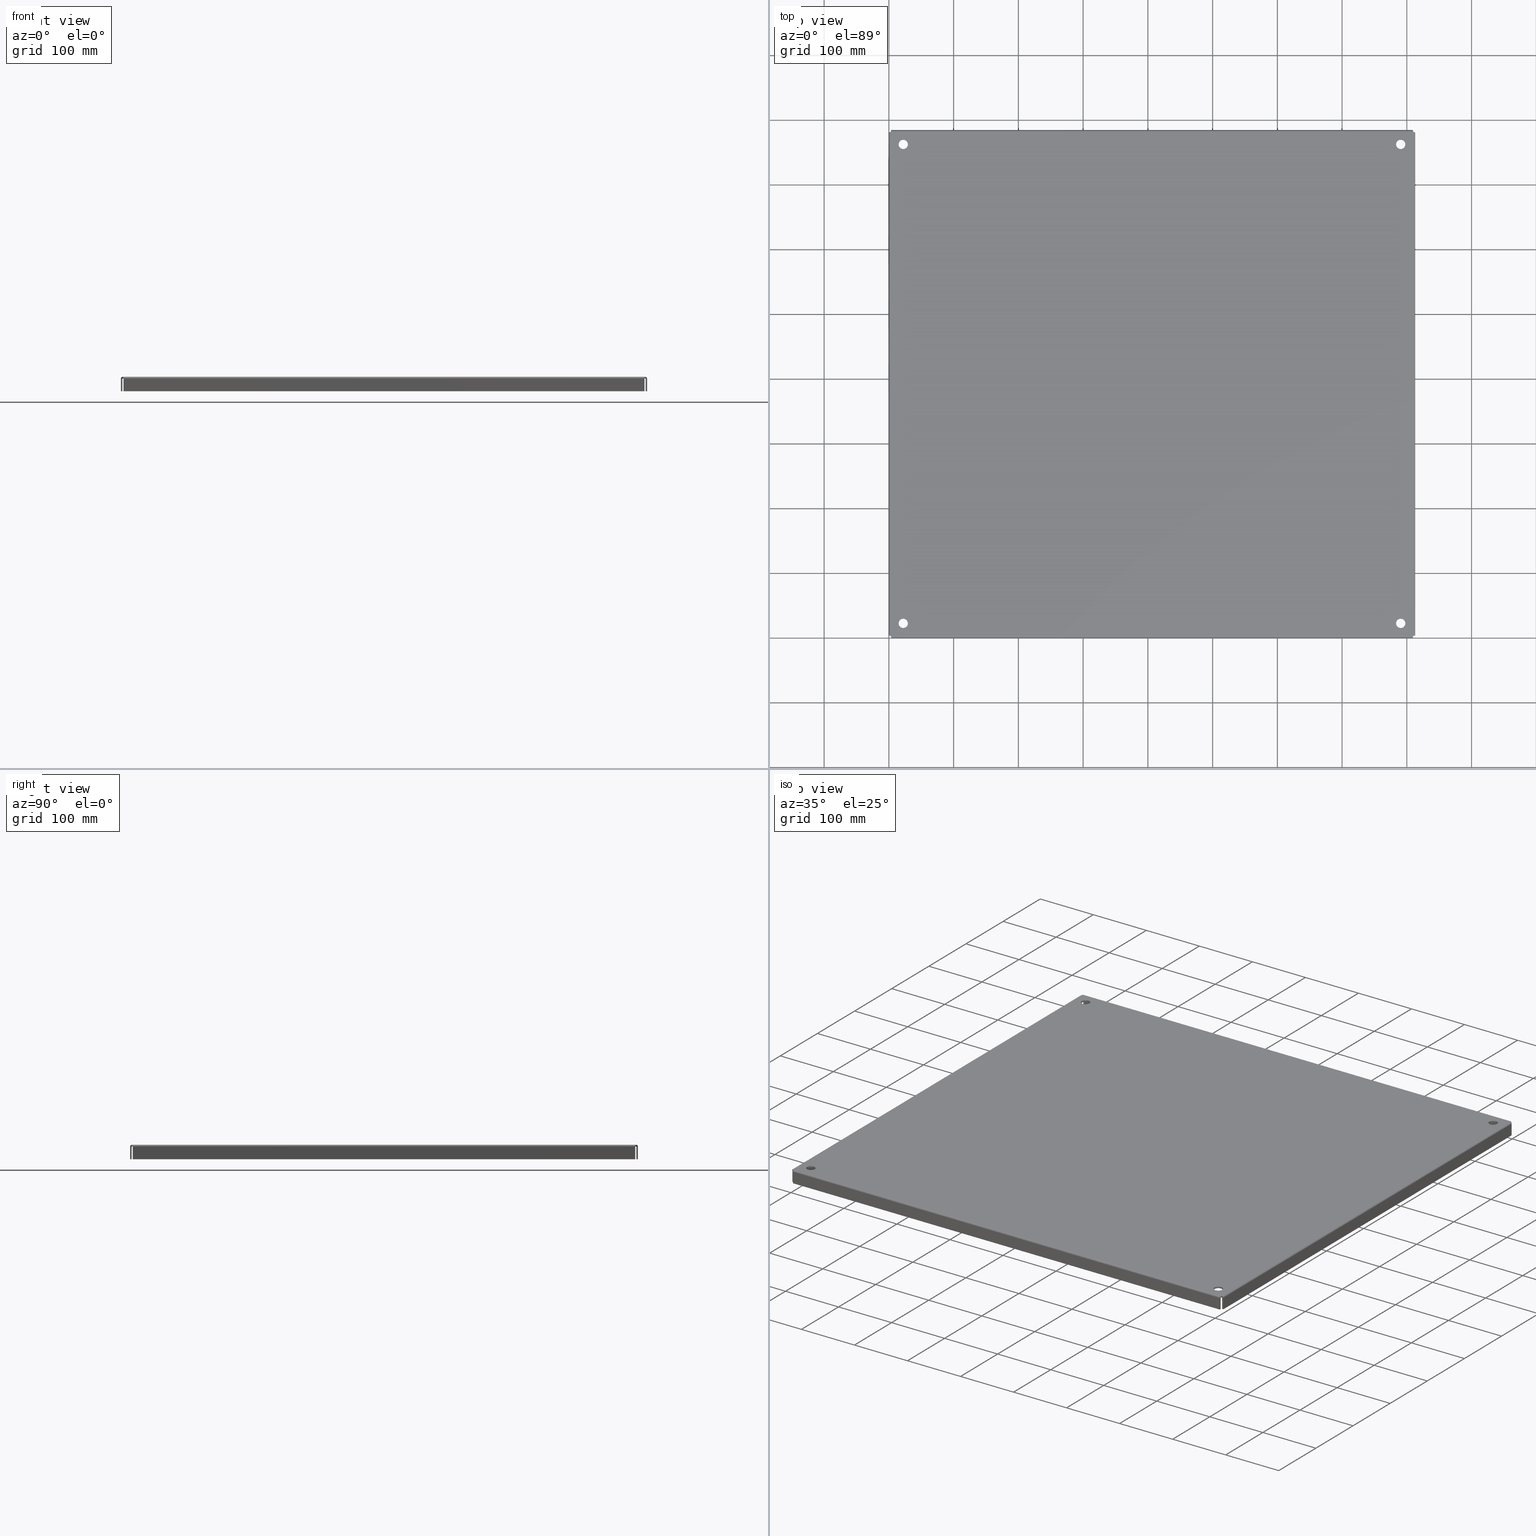
[diagram: canonical four-view strip — front | top / right | iso, engineering-drawing reading convention]
A machine part, canonical four-view strip (front | top / right | iso — engineering-drawing reading convention). The complete STEP part file that produces these views, byte-faithful:
ISO-10303-21;
HEADER;
/****************************************************************
 * Generated by software with PDElib inside                    *
 * PDElib Version v51a, created Wed 07/06/2011                  *
 * ITI Transcendata (http://www.transcendata.com/)              *
 ****************************************************************/
FILE_DESCRIPTION((''),'2;1');
FILE_NAME('C:\\W_Vault\\W-India\\Panels\\WA_F1G & WA_F2G\\WA_P_F_G_DXF STP\\WA72P36F2G.stp','2013-06-19T20:30:04',('ypadmaraja'),(''),'Autodesk Inventor 2012','Autodesk Inventor 2012','');
FILE_SCHEMA(('AUTOMOTIVE_DESIGN { 1 0 10303 214 1 1 1 1 }'));
ENDSEC;
DATA;
#5=APPLICATION_CONTEXT('automotive design');
#6=APPLICATION_PROTOCOL_DEFINITION('International Standard','automotive_design',2001,#5);
#7=PRODUCT_CONTEXT('',#5,'mechanical');
#8=PRODUCT('WA_P_F_G','WA_P_F_G',$,(#7));
#9=PRODUCT_RELATED_PRODUCT_CATEGORY('part',$,(#8));
#10=PRODUCT_DEFINITION_FORMATION('',$,#8);
#11=PRODUCT_DEFINITION_CONTEXT('part definition',#5,'design');
#12=PRODUCT_DEFINITION('',$,#10,#11);
#18=(NAMED_UNIT(*)PLANE_ANGLE_UNIT()SI_UNIT($,.RADIAN.));
#19=DIMENSIONAL_EXPONENTS(0.0,0.0,0.0,0.0,0.0,0.0,0.0);
#20=PLANE_ANGLE_MEASURE_WITH_UNIT(PLANE_ANGLE_MEASURE(0.0174532925),#18);
#24=(CONVERSION_BASED_UNIT('DEGREE',#20)NAMED_UNIT(#19)PLANE_ANGLE_UNIT());
#28=(NAMED_UNIT(*)SI_UNIT($,.STERADIAN.)SOLID_ANGLE_UNIT());
#32=(LENGTH_UNIT()NAMED_UNIT(*)SI_UNIT(.CENTI.,.METRE.));
#33=DIMENSIONAL_EXPONENTS(1.0,0.0,0.0,0.0,0.0,0.0,0.0);
#34=LENGTH_MEASURE_WITH_UNIT(LENGTH_MEASURE(2.54),#32);
#38=(CONVERSION_BASED_UNIT('INCH',#34)LENGTH_UNIT()NAMED_UNIT(#33));
#40=UNCERTAINTY_MEASURE_WITH_UNIT(LENGTH_MEASURE(0.000393700787402),#38,'DISTANCE_ACCURACY_VALUE','');
#42=(GEOMETRIC_REPRESENTATION_CONTEXT(3)GLOBAL_UNCERTAINTY_ASSIGNED_CONTEXT((#40))GLOBAL_UNIT_ASSIGNED_CONTEXT((#24,#28,#38))REPRESENTATION_CONTEXT('None','None'));
#43=AXIS2_PLACEMENT_3D('',#44,#45,#46);
#44=CARTESIAN_POINT('',(0.0,0.0,0.0));
#45=DIRECTION('',(0.0,0.0,1.0));
#46=DIRECTION('',(1.0,0.0,0.0));
#47=SHAPE_REPRESENTATION('',(#43),#42);
#48=PRODUCT_DEFINITION_SHAPE('','',#12);
#49=SHAPE_DEFINITION_REPRESENTATION(#48,#47);
#55=(NAMED_UNIT(*)PLANE_ANGLE_UNIT()SI_UNIT($,.RADIAN.));
#56=DIMENSIONAL_EXPONENTS(0.0,0.0,0.0,0.0,0.0,0.0,0.0);
#57=PLANE_ANGLE_MEASURE_WITH_UNIT(PLANE_ANGLE_MEASURE(0.0174532925),#55);
#61=(CONVERSION_BASED_UNIT('DEGREE',#57)NAMED_UNIT(#56)PLANE_ANGLE_UNIT());
#65=(NAMED_UNIT(*)SI_UNIT($,.STERADIAN.)SOLID_ANGLE_UNIT());
#69=(LENGTH_UNIT()NAMED_UNIT(*)SI_UNIT(.MILLI.,.METRE.));
#71=UNCERTAINTY_MEASURE_WITH_UNIT(LENGTH_MEASURE(0.000001),#69,'DISTANCE_ACCURACY_VALUE','');
#73=(GEOMETRIC_REPRESENTATION_CONTEXT(3)GLOBAL_UNCERTAINTY_ASSIGNED_CONTEXT((#71))GLOBAL_UNIT_ASSIGNED_CONTEXT((#61,#65,#69))REPRESENTATION_CONTEXT('','3D'));
#74=CARTESIAN_POINT('',(31.125000000000004,30.004999999999988,0.046875));
#75=DIRECTION('',(0.0,0.0,1.0));
#76=DIRECTION('',(1.0,0.0,0.0));
#77=AXIS2_PLACEMENT_3D('',#74,#75,#76);
#78=CYLINDRICAL_SURFACE('',#77,0.2815);
#79=CARTESIAN_POINT('',(31.406500000000005,30.004999999999988,0.09375));
#80=VERTEX_POINT('',#79);
#81=CARTESIAN_POINT('',(31.125000000000004,30.004999999999988,0.09375));
#82=DIRECTION('',(0.0,0.0,-1.0));
#83=DIRECTION('',(1.0,0.0,0.0));
#84=AXIS2_PLACEMENT_3D('',#81,#82,#83);
#85=CIRCLE('',#84,0.2815);
#86=EDGE_CURVE('',#80,#80,#85,.T.);
#87=ORIENTED_EDGE('',*,*,#86,.F.);
#88=EDGE_LOOP('',(#87));
#89=FACE_OUTER_BOUND('',#88,.T.);
#90=CARTESIAN_POINT('',(31.406500000000005,30.004999999999988,0.0));
#91=VERTEX_POINT('',#90);
#92=CARTESIAN_POINT('',(31.125000000000004,30.004999999999988,0.0));
#93=DIRECTION('',(0.0,0.0,1.0));
#94=DIRECTION('',(1.0,0.0,0.0));
#95=AXIS2_PLACEMENT_3D('',#92,#93,#94);
#96=CIRCLE('',#95,0.2815);
#97=EDGE_CURVE('',#91,#91,#96,.T.);
#98=ORIENTED_EDGE('',*,*,#97,.F.);
#99=EDGE_LOOP('',(#98));
#100=FACE_BOUND('',#99,.T.);
#101=ADVANCED_FACE('',(#89,#100),#78,.F.);
#102=CARTESIAN_POINT('',(0.874999999999991,30.004999999999988,0.046875));
#103=DIRECTION('',(0.0,0.0,1.0));
#104=DIRECTION('',(1.0,0.0,0.0));
#105=AXIS2_PLACEMENT_3D('',#102,#103,#104);
#106=CYLINDRICAL_SURFACE('',#105,0.2815);
#107=CARTESIAN_POINT('',(1.156499999999991,30.004999999999988,0.09375));
#108=VERTEX_POINT('',#107);
#109=CARTESIAN_POINT('',(0.874999999999991,30.004999999999988,0.09375));
#110=DIRECTION('',(0.0,0.0,-1.0));
#111=DIRECTION('',(1.0,0.0,0.0));
#112=AXIS2_PLACEMENT_3D('',#109,#110,#111);
#113=CIRCLE('',#112,0.2815);
#114=EDGE_CURVE('',#108,#108,#113,.T.);
#115=ORIENTED_EDGE('',*,*,#114,.F.);
#116=EDGE_LOOP('',(#115));
#117=FACE_OUTER_BOUND('',#116,.T.);
#118=CARTESIAN_POINT('',(1.156499999999991,30.004999999999988,0.0));
#119=VERTEX_POINT('',#118);
#120=CARTESIAN_POINT('',(0.874999999999991,30.004999999999988,0.0));
#121=DIRECTION('',(0.0,0.0,1.0));
#122=DIRECTION('',(1.0,0.0,0.0));
#123=AXIS2_PLACEMENT_3D('',#120,#121,#122);
#124=CIRCLE('',#123,0.2815);
#125=EDGE_CURVE('',#119,#119,#124,.T.);
#126=ORIENTED_EDGE('',*,*,#125,.F.);
#127=EDGE_LOOP('',(#126));
#128=FACE_BOUND('',#127,.T.);
#129=ADVANCED_FACE('',(#117,#128),#106,.F.);
#130=CARTESIAN_POINT('',(0.874999999999976,0.875,0.046875));
#131=DIRECTION('',(0.0,0.0,1.0));
#132=DIRECTION('',(1.0,0.0,0.0));
#133=AXIS2_PLACEMENT_3D('',#130,#131,#132);
#134=CYLINDRICAL_SURFACE('',#133,0.2815);
#135=CARTESIAN_POINT('',(1.156499999999976,0.875,0.09375));
#136=VERTEX_POINT('',#135);
#137=CARTESIAN_POINT('',(0.874999999999976,0.875,0.09375));
#138=DIRECTION('',(0.0,0.0,-1.0));
#139=DIRECTION('',(1.0,0.0,0.0));
#140=AXIS2_PLACEMENT_3D('',#137,#138,#139);
#141=CIRCLE('',#140,0.2815);
#142=EDGE_CURVE('',#136,#136,#141,.T.);
#143=ORIENTED_EDGE('',*,*,#142,.F.);
#144=EDGE_LOOP('',(#143));
#145=FACE_OUTER_BOUND('',#144,.T.);
#146=CARTESIAN_POINT('',(1.156499999999976,0.875,0.0));
#147=VERTEX_POINT('',#146);
#148=CARTESIAN_POINT('',(0.874999999999976,0.875,0.0));
#149=DIRECTION('',(0.0,0.0,1.0));
#150=DIRECTION('',(1.0,0.0,0.0));
#151=AXIS2_PLACEMENT_3D('',#148,#149,#150);
#152=CIRCLE('',#151,0.2815);
#153=EDGE_CURVE('',#147,#147,#152,.T.);
#154=ORIENTED_EDGE('',*,*,#153,.F.);
#155=EDGE_LOOP('',(#154));
#156=FACE_BOUND('',#155,.T.);
#157=ADVANCED_FACE('',(#145,#156),#134,.F.);
#158=CARTESIAN_POINT('',(31.124999999999993,0.875,0.046875));
#159=DIRECTION('',(0.0,0.0,1.0));
#160=DIRECTION('',(1.0,0.0,0.0));
#161=AXIS2_PLACEMENT_3D('',#158,#159,#160);
#162=CYLINDRICAL_SURFACE('',#161,0.2815);
#163=CARTESIAN_POINT('',(31.406499999999994,0.875,0.09375));
#164=VERTEX_POINT('',#163);
#165=CARTESIAN_POINT('',(31.124999999999993,0.875,0.09375));
#166=DIRECTION('',(0.0,0.0,-1.0));
#167=DIRECTION('',(1.0,0.0,0.0));
#168=AXIS2_PLACEMENT_3D('',#165,#166,#167);
#169=CIRCLE('',#168,0.2815);
#170=EDGE_CURVE('',#164,#164,#169,.T.);
#171=ORIENTED_EDGE('',*,*,#170,.F.);
#172=EDGE_LOOP('',(#171));
#173=FACE_OUTER_BOUND('',#172,.T.);
#174=CARTESIAN_POINT('',(31.406499999999994,0.875,0.0));
#175=VERTEX_POINT('',#174);
#176=CARTESIAN_POINT('',(31.124999999999993,0.875,0.0));
#177=DIRECTION('',(0.0,0.0,1.0));
#178=DIRECTION('',(1.0,0.0,0.0));
#179=AXIS2_PLACEMENT_3D('',#176,#177,#178);
#180=CIRCLE('',#179,0.2815);
#181=EDGE_CURVE('',#175,#175,#180,.T.);
#182=ORIENTED_EDGE('',*,*,#181,.F.);
#183=EDGE_LOOP('',(#182));
#184=FACE_BOUND('',#183,.T.);
#185=ADVANCED_FACE('',(#173,#184),#162,.F.);
#186=CARTESIAN_POINT('',(31.890650000000008,30.719958739263781,-0.0156));
#187=DIRECTION('',(-1.811796E-016,1.0,0.0));
#188=DIRECTION('',(1.0,0.0,4.032942E-013));
#189=AXIS2_PLACEMENT_3D('',#186,#187,#188);
#190=CYLINDRICAL_SURFACE('',#189,0.109349999999989);
#191=CARTESIAN_POINT('',(32.0,30.719958739263781,-0.015599999999973));
#192=VERTEX_POINT('',#191);
#193=CARTESIAN_POINT('',(32.000000000000021,0.160041260736237,-0.015599999999985));
#194=VERTEX_POINT('',#193);
#195=CARTESIAN_POINT('',(31.999999999999996,30.719958739263781,-0.015599999999985));
#196=DIRECTION('',(0.0,-1.0,0.0));
#197=VECTOR('',#196,30.559917478527545);
#198=LINE('',#195,#197);
#199=EDGE_CURVE('',#192,#194,#198,.T.);
#200=ORIENTED_EDGE('',*,*,#199,.F.);
#201=CARTESIAN_POINT('',(31.890649999999997,30.770650000000018,0.09375));
#202=VERTEX_POINT('',#201);
#203=CARTESIAN_POINT('',(31.890650000000008,30.770650000000028,0.09375));
#204=CARTESIAN_POINT('',(31.915188082619288,30.763408391323424,0.09375));
#205=CARTESIAN_POINT('',(31.939756569712415,30.756166782646815,0.085170621322967));
#206=CARTESIAN_POINT('',(31.958844052693603,30.748925173970211,0.069869628275876));
#207=CARTESIAN_POINT('',(31.984294030001859,30.739269695734738,0.049468304213088));
#208=CARTESIAN_POINT('',(31.999999999999996,30.729614217499261,0.017117443492422));
#209=CARTESIAN_POINT('',(32.000000000000007,30.719958739263781,-0.015599999999954));
#210=B_SPLINE_CURVE_WITH_KNOTS('',3,(#203,#204,#205,#206,#207,#208,#209),.UNSPECIFIED.,.F.,.U.,(4,3,4),(0.0,0.673198425769068,1.570796326794471),.UNSPECIFIED.);
#211=EDGE_CURVE('',#202,#192,#210,.T.);
#212=ORIENTED_EDGE('',*,*,#211,.F.);
#213=CARTESIAN_POINT('',(31.890650000000001,0.10935,0.09375));
#214=VERTEX_POINT('',#213);
#215=CARTESIAN_POINT('',(31.890650000000001,0.10935,0.09375));
#216=DIRECTION('',(0.0,1.0,0.0));
#217=VECTOR('',#216,30.661300000000018);
#218=LINE('',#215,#217);
#219=EDGE_CURVE('',#214,#202,#218,.T.);
#220=ORIENTED_EDGE('',*,*,#219,.F.);
#221=CARTESIAN_POINT('',(32.000000000000021,0.160041260736237,-0.015599999999981));
#222=CARTESIAN_POINT('',(32.000000000000021,0.150385782500762,0.017117443492408));
#223=CARTESIAN_POINT('',(31.98429409483029,0.140730304265287,0.049468381998053));
#224=CARTESIAN_POINT('',(31.958844108260827,0.131074826029811,0.069869694948711));
#225=CARTESIAN_POINT('',(31.939756618333732,0.123833217353206,0.085170679661701));
#226=CARTESIAN_POINT('',(31.915188082619281,0.1165916086766,0.093750000000014));
#227=CARTESIAN_POINT('',(31.890649999999997,0.109349999999995,0.093750000000012));
#228=B_SPLINE_CURVE_WITH_KNOTS('',3,(#221,#222,#223,#224,#225,#226,#227),.UNSPECIFIED.,.F.,.U.,(4,3,4),(0.0,0.89759790102569,1.570796326794839),.UNSPECIFIED.);
#229=EDGE_CURVE('',#194,#214,#228,.T.);
#230=ORIENTED_EDGE('',*,*,#229,.F.);
#231=EDGE_LOOP('',(#200,#212,#220,#230));
#232=FACE_OUTER_BOUND('',#231,.T.);
#233=ADVANCED_FACE('',(#232),#190,.T.);
#234=CARTESIAN_POINT('',(31.906250000000032,15.440000000000003,-0.361740214942218));
#235=DIRECTION('',(1.0,0.0,0.0));
#236=DIRECTION('',(0.0,0.0,-1.0));
#237=AXIS2_PLACEMENT_3D('',#234,#235,#236);
#238=PLANE('',#237);
#239=CARTESIAN_POINT('',(31.906250000000025,0.160041260736237,-0.01559999999999));
#240=VERTEX_POINT('',#239);
#241=CARTESIAN_POINT('',(31.906249999999996,30.719958739263781,-0.015599999999979));
#242=VERTEX_POINT('',#241);
#243=CARTESIAN_POINT('',(31.906250000000021,0.160041260736238,-0.01559999999999));
#244=DIRECTION('',(0.0,1.0,0.0));
#245=VECTOR('',#244,30.559917478527545);
#246=LINE('',#243,#245);
#247=EDGE_CURVE('',#240,#242,#246,.T.);
#248=ORIENTED_EDGE('',*,*,#247,.T.);
#249=CARTESIAN_POINT('',(31.90625000000005,30.719958739263781,-0.781249999999978));
#250=VERTEX_POINT('',#249);
#251=CARTESIAN_POINT('',(31.906250000000004,30.719958739263781,-0.015599999999979));
#252=DIRECTION('',(0.0,0.0,-1.0));
#253=VECTOR('',#252,0.765649999999999);
#254=LINE('',#251,#253);
#255=EDGE_CURVE('',#242,#250,#254,.T.);
#256=ORIENTED_EDGE('',*,*,#255,.T.);
#257=CARTESIAN_POINT('',(31.906250000000071,0.160041260736234,-0.781249999999994));
#258=VERTEX_POINT('',#257);
#259=CARTESIAN_POINT('',(31.90625000000005,30.719958739263781,-0.781249999999978));
#260=DIRECTION('',(0.0,-1.0,0.0));
#261=VECTOR('',#260,30.559917478527549);
#262=LINE('',#259,#261);
#263=EDGE_CURVE('',#250,#258,#262,.T.);
#264=ORIENTED_EDGE('',*,*,#263,.T.);
#265=CARTESIAN_POINT('',(31.906250000000025,0.160041260736234,-0.015599999999996));
#266=DIRECTION('',(0.0,0.0,-1.0));
#267=VECTOR('',#266,0.765649999999999);
#268=LINE('',#265,#267);
#269=EDGE_CURVE('',#240,#258,#268,.T.);
#270=ORIENTED_EDGE('',*,*,#269,.F.);
#271=EDGE_LOOP('',(#248,#256,#264,#270));
#272=FACE_OUTER_BOUND('',#271,.T.);
#273=ADVANCED_FACE('',(#272),#238,.F.);
#274=CARTESIAN_POINT('',(31.906250000000071,0.160041260736234,-0.781249999999994));
#275=DIRECTION('',(0.0,-1.0,0.0));
#276=DIRECTION('',(-1.0,0.0,0.0));
#277=AXIS2_PLACEMENT_3D('',#274,#275,#276);
#278=PLANE('',#277);
#279=CARTESIAN_POINT('',(32.000000000000071,0.160041260736234,-0.781249999999989));
#280=VERTEX_POINT('',#279);
#281=CARTESIAN_POINT('',(32.000000000000071,0.160041260736234,-0.781249999999989));
#282=DIRECTION('',(0.0,0.0,1.0));
#283=VECTOR('',#282,0.765649999999999);
#284=LINE('',#281,#283);
#285=EDGE_CURVE('',#280,#194,#284,.T.);
#286=ORIENTED_EDGE('',*,*,#285,.T.);
#287=CARTESIAN_POINT('',(31.906250000000025,0.160041260736237,-0.01559999999999));
#288=DIRECTION('',(1.0,0.0,0.0));
#289=VECTOR('',#288,0.093749999999996);
#290=LINE('',#287,#289);
#291=EDGE_CURVE('',#240,#194,#290,.T.);
#292=ORIENTED_EDGE('',*,*,#291,.F.);
#293=ORIENTED_EDGE('',*,*,#269,.T.);
#294=CARTESIAN_POINT('',(31.906250000000071,0.160041260736234,-0.781249999999994));
#295=DIRECTION('',(1.0,0.0,0.0));
#296=VECTOR('',#295,0.09375);
#297=LINE('',#294,#296);
#298=EDGE_CURVE('',#258,#280,#297,.T.);
#299=ORIENTED_EDGE('',*,*,#298,.T.);
#300=EDGE_LOOP('',(#286,#292,#293,#299));
#301=FACE_OUTER_BOUND('',#300,.T.);
#302=ADVANCED_FACE('',(#301),#278,.T.);
#303=CARTESIAN_POINT('',(31.890649999999987,0.109349999999992,0.093750000000012));
#304=CARTESIAN_POINT('',(31.89064999999999,0.109349999999992,0.062500000000008));
#305=CARTESIAN_POINT('',(31.890650000000001,0.109349999999992,0.031250000000004));
#306=CARTESIAN_POINT('',(31.890650000000008,0.109349999999992,-8.195544E-018));
#307=CARTESIAN_POINT('',(31.915188082619277,0.116591608676598,0.093750000000017));
#308=CARTESIAN_POINT('',(31.908175599017518,0.116591608676598,0.062500000000012));
#309=CARTESIAN_POINT('',(31.901163115415763,0.116591608676598,0.031250000000006));
#310=CARTESIAN_POINT('',(31.894150631814007,0.116591608676598,7.877560E-016));
#311=CARTESIAN_POINT('',(31.972514665952996,0.13348869558868,0.073731585877286));
#312=CARTESIAN_POINT('',(31.949119413908818,0.13348869558868,0.048202440393379));
#313=CARTESIAN_POINT('',(31.925724161864643,0.13348869558868,0.022673294909472));
#314=CARTESIAN_POINT('',(31.902328909820469,0.13348869558868,-0.002855850574435));
#315=CARTESIAN_POINT('',(32.000000000000021,0.150385782500762,0.017117443492408));
#316=CARTESIAN_POINT('',(31.968750000000014,0.150385782500762,0.007767465356717));
#317=CARTESIAN_POINT('',(31.937500000000014,0.150385782500762,-0.001582512778973));
#318=CARTESIAN_POINT('',(31.906250000000011,0.150385782500762,-0.010932490914664));
#319=CARTESIAN_POINT('',(32.000000000000021,0.160041260736237,-0.015599999999981));
#320=CARTESIAN_POINT('',(31.968750000000018,0.160041260736237,-0.015599999999986));
#321=CARTESIAN_POINT('',(31.937500000000014,0.160041260736237,-0.015599999999992));
#322=CARTESIAN_POINT('',(31.906250000000011,0.160041260736237,-0.015599999999997));
#323=B_SPLINE_SURFACE_WITH_KNOTS('',3,3,((#303,#307,#311,#315,#319),(#304,#308,#312,#316,#320),(#305,#309,#313,#317,#321),(#306,#310,#314,#318,#322)),.UNSPECIFIED.,.F.,.F.,.F.,(4,4),(4,1,4),(-0.238125,2.964569E-014),(-0.222887265970854,-0.127364151983345,0.0),.UNSPECIFIED.);
#324=ORIENTED_EDGE('',*,*,#229,.T.);
#325=CARTESIAN_POINT('',(31.890650000000001,0.109349999999992,0.01667105887093));
#326=VERTEX_POINT('',#325);
#327=CARTESIAN_POINT('',(31.890650000000001,0.10935,0.01667105887093));
#328=DIRECTION('',(0.0,0.0,1.0));
#329=VECTOR('',#328,0.07707894112907);
#330=LINE('',#327,#329);
#331=EDGE_CURVE('',#326,#214,#330,.T.);
#332=ORIENTED_EDGE('',*,*,#331,.F.);
#333=CARTESIAN_POINT('',(31.890650000000001,0.10935,0.0));
#334=VERTEX_POINT('',#333);
#335=CARTESIAN_POINT('',(31.890650000000001,0.10935,0.0));
#336=DIRECTION('',(0.0,0.0,1.0));
#337=VECTOR('',#336,0.01667105887093);
#338=LINE('',#335,#337);
#339=EDGE_CURVE('',#334,#326,#338,.T.);
#340=ORIENTED_EDGE('',*,*,#339,.F.);
#341=CARTESIAN_POINT('',(31.890650000000008,0.109349999999994,0.0));
#342=CARTESIAN_POINT('',(31.894150631814007,0.1165916086766,5.423561E-016));
#343=CARTESIAN_POINT('',(31.897655608102493,0.123833217353205,-0.001223935960472));
#344=CARTESIAN_POINT('',(31.900378651932972,0.131074826029811,-0.003406792490172));
#345=CARTESIAN_POINT('',(31.904009377040271,0.140730304265287,-0.006317267863105));
#346=CARTESIAN_POINT('',(31.906250000000011,0.150385782500762,-0.010932490914664));
#347=CARTESIAN_POINT('',(31.906250000000011,0.160041260736237,-0.015599999999997));
#348=B_SPLINE_CURVE_WITH_KNOTS('',3,(#341,#342,#343,#344,#345,#346,#347),.UNSPECIFIED.,.F.,.U.,(4,3,4),(0.0,0.673198425769177,1.570796326794839),.UNSPECIFIED.);
#349=EDGE_CURVE('',#334,#240,#348,.T.);
#350=ORIENTED_EDGE('',*,*,#349,.T.);
#351=ORIENTED_EDGE('',*,*,#291,.T.);
#352=EDGE_LOOP('',(#324,#332,#340,#350,#351));
#353=FACE_OUTER_BOUND('',#352,.T.);
#354=ADVANCED_FACE('',(#353),#323,.T.);
#355=CARTESIAN_POINT('',(32.000000000000007,30.719958739263781,-0.015599999999956));
#356=CARTESIAN_POINT('',(31.968750000000004,30.719958739263781,-0.015599999999969));
#357=CARTESIAN_POINT('',(31.937500000000004,30.719958739263781,-0.015599999999981));
#358=CARTESIAN_POINT('',(31.906249999999996,30.719958739263781,-0.015599999999994));
#359=CARTESIAN_POINT('',(31.999999999999996,30.729614217499261,0.01711744349242));
#360=CARTESIAN_POINT('',(31.968749999999993,30.729614217499261,0.007767465356725));
#361=CARTESIAN_POINT('',(31.937499999999996,30.729614217499261,-0.00158251277897));
#362=CARTESIAN_POINT('',(31.906249999999996,30.729614217499261,-0.010932490914664));
#363=CARTESIAN_POINT('',(31.972514552503252,30.746511304411349,0.073731449753589));
#364=CARTESIAN_POINT('',(31.949119332880699,30.746511304411349,0.048202343171057));
#365=CARTESIAN_POINT('',(31.925724113258148,30.746511304411349,0.022673236588524));
#366=CARTESIAN_POINT('',(31.902328893635591,30.746511304411349,-0.002855869994008));
#367=CARTESIAN_POINT('',(31.915188082619288,30.763408391323424,0.09375));
#368=CARTESIAN_POINT('',(31.908175599017525,30.763408391323424,0.062499999999997));
#369=CARTESIAN_POINT('',(31.90116311541577,30.763408391323424,0.031249999999994));
#370=CARTESIAN_POINT('',(31.894150631814007,30.763408391323424,-8.722791E-015));
#371=CARTESIAN_POINT('',(31.890650000000008,30.770650000000028,0.09375));
#372=CARTESIAN_POINT('',(31.890650000000008,30.770650000000028,0.062499999999997));
#373=CARTESIAN_POINT('',(31.890650000000008,30.770650000000028,0.031249999999994));
#374=CARTESIAN_POINT('',(31.890650000000008,30.770650000000028,-8.722791E-015));
#375=B_SPLINE_SURFACE_WITH_KNOTS('',3,3,((#355,#359,#363,#367,#371),(#356,#360,#364,#368,#372),(#357,#361,#365,#369,#373),(#358,#362,#366,#370,#374)),.UNSPECIFIED.,.F.,.F.,.F.,(4,4),(4,1,4),(-0.238125,2.216009E-014),(-0.222887265970812,-0.095523113987491,0.0),.UNSPECIFIED.);
#376=ORIENTED_EDGE('',*,*,#211,.T.);
#377=CARTESIAN_POINT('',(31.906249999999996,30.719958739263781,-0.015599999999979));
#378=DIRECTION('',(1.0,0.0,0.0));
#379=VECTOR('',#378,0.093750000000004);
#380=LINE('',#377,#379);
#381=EDGE_CURVE('',#242,#192,#380,.T.);
#382=ORIENTED_EDGE('',*,*,#381,.F.);
#383=CARTESIAN_POINT('',(31.890649999999997,30.770650000000018,0.0));
#384=VERTEX_POINT('',#383);
#385=CARTESIAN_POINT('',(31.890650000000008,30.770650000000028,0.0));
#386=CARTESIAN_POINT('',(31.894150631814007,30.763408391323424,2.637490E-016));
#387=CARTESIAN_POINT('',(31.897655601166122,30.756166782646815,-0.001223944283143));
#388=CARTESIAN_POINT('',(31.900378644005684,30.748925173970211,-0.003406802001795));
#389=CARTESIAN_POINT('',(31.904009367791776,30.739269695734738,-0.006317278959997));
#390=CARTESIAN_POINT('',(31.906250000000011,30.729614217499261,-0.010932490914661));
#391=CARTESIAN_POINT('',(31.906250000000011,30.719958739263781,-0.015599999999994));
#392=B_SPLINE_CURVE_WITH_KNOTS('',3,(#385,#386,#387,#388,#389,#390,#391),.UNSPECIFIED.,.F.,.U.,(4,3,4),(0.0,0.673198425769047,1.570796326794471),.UNSPECIFIED.);
#393=EDGE_CURVE('',#384,#242,#392,.T.);
#394=ORIENTED_EDGE('',*,*,#393,.F.);
#395=CARTESIAN_POINT('',(31.890650000000008,30.770650000000028,0.016671058870927));
#396=VERTEX_POINT('',#395);
#397=CARTESIAN_POINT('',(31.890649999999997,30.770650000000018,0.0));
#398=DIRECTION('',(0.0,0.0,1.0));
#399=VECTOR('',#398,0.016671058870927);
#400=LINE('',#397,#399);
#401=EDGE_CURVE('',#384,#396,#400,.T.);
#402=ORIENTED_EDGE('',*,*,#401,.T.);
#403=CARTESIAN_POINT('',(31.890649999999997,30.770650000000018,0.016671058870927));
#404=DIRECTION('',(0.0,0.0,1.0));
#405=VECTOR('',#404,0.077078941129073);
#406=LINE('',#403,#405);
#407=EDGE_CURVE('',#396,#202,#406,.T.);
#408=ORIENTED_EDGE('',*,*,#407,.T.);
#409=EDGE_LOOP('',(#376,#382,#394,#402,#408));
#410=FACE_OUTER_BOUND('',#409,.T.);
#411=ADVANCED_FACE('',(#410),#375,.T.);
#412=CARTESIAN_POINT('',(31.906249999999996,30.719958739263781,-0.015599999999979));
#413=DIRECTION('',(0.0,1.0,0.0));
#414=DIRECTION('',(1.0,0.0,0.0));
#415=AXIS2_PLACEMENT_3D('',#412,#413,#414);
#416=PLANE('',#415);
#417=CARTESIAN_POINT('',(32.00000000000005,30.719958739263781,-0.781249999999972));
#418=VERTEX_POINT('',#417);
#419=CARTESIAN_POINT('',(32.0,30.719958739263781,-0.015599999999973));
#420=DIRECTION('',(0.0,0.0,-1.0));
#421=VECTOR('',#420,0.765649999999999);
#422=LINE('',#419,#421);
#423=EDGE_CURVE('',#192,#418,#422,.T.);
#424=ORIENTED_EDGE('',*,*,#423,.T.);
#425=CARTESIAN_POINT('',(31.90625000000005,30.719958739263781,-0.781249999999978));
#426=DIRECTION('',(1.0,0.0,0.0));
#427=VECTOR('',#426,0.093750000000007);
#428=LINE('',#425,#427);
#429=EDGE_CURVE('',#250,#418,#428,.T.);
#430=ORIENTED_EDGE('',*,*,#429,.F.);
#431=ORIENTED_EDGE('',*,*,#255,.F.);
#432=ORIENTED_EDGE('',*,*,#381,.T.);
#433=EDGE_LOOP('',(#424,#430,#431,#432));
#434=FACE_OUTER_BOUND('',#433,.T.);
#435=ADVANCED_FACE('',(#434),#416,.T.);
#436=CARTESIAN_POINT('',(31.90625000000005,30.719958739263781,-0.781249999999978));
#437=DIRECTION('',(0.0,0.0,-1.0));
#438=DIRECTION('',(-1.0,0.0,0.0));
#439=AXIS2_PLACEMENT_3D('',#436,#437,#438);
#440=PLANE('',#439);
#441=CARTESIAN_POINT('',(32.00000000000005,30.719958739263781,-0.781249999999972));
#442=DIRECTION('',(0.0,-1.0,0.0));
#443=VECTOR('',#442,30.559917478527549);
#444=LINE('',#441,#443);
#445=EDGE_CURVE('',#418,#280,#444,.T.);
#446=ORIENTED_EDGE('',*,*,#445,.T.);
#447=ORIENTED_EDGE('',*,*,#298,.F.);
#448=ORIENTED_EDGE('',*,*,#263,.F.);
#449=ORIENTED_EDGE('',*,*,#429,.T.);
#450=EDGE_LOOP('',(#446,#447,#448,#449));
#451=FACE_OUTER_BOUND('',#450,.T.);
#452=ADVANCED_FACE('',(#451),#440,.T.);
#453=CARTESIAN_POINT('',(32.000000000000028,15.440000000000005,-0.361740214942212));
#454=DIRECTION('',(1.0,0.0,0.0));
#455=DIRECTION('',(0.0,0.0,-1.0));
#456=AXIS2_PLACEMENT_3D('',#453,#454,#455);
#457=PLANE('',#456);
#458=ORIENTED_EDGE('',*,*,#199,.T.);
#459=ORIENTED_EDGE('',*,*,#285,.F.);
#460=ORIENTED_EDGE('',*,*,#445,.F.);
#461=ORIENTED_EDGE('',*,*,#423,.F.);
#462=EDGE_LOOP('',(#458,#459,#460,#461));
#463=FACE_OUTER_BOUND('',#462,.T.);
#464=ADVANCED_FACE('',(#463),#457,.T.);
#465=CARTESIAN_POINT('',(31.890650000000008,0.160041260736237,-0.0156));
#466=DIRECTION('',(-1.811796E-016,1.0,0.0));
#467=DIRECTION('',(1.0,0.0,1.759941E-013));
#468=AXIS2_PLACEMENT_3D('',#465,#466,#467);
#469=CYLINDRICAL_SURFACE('',#468,0.015600000000007);
#470=ORIENTED_EDGE('',*,*,#247,.F.);
#471=ORIENTED_EDGE('',*,*,#349,.F.);
#472=CARTESIAN_POINT('',(31.890650000000001,30.770650000000018,0.0));
#473=DIRECTION('',(0.0,-1.0,0.0));
#474=VECTOR('',#473,30.661300000000018);
#475=LINE('',#472,#474);
#476=EDGE_CURVE('',#384,#334,#475,.T.);
#477=ORIENTED_EDGE('',*,*,#476,.F.);
#478=ORIENTED_EDGE('',*,*,#393,.T.);
#479=EDGE_LOOP('',(#470,#471,#477,#478));
#480=FACE_OUTER_BOUND('',#479,.T.);
#481=ADVANCED_FACE('',(#480),#469,.F.);
#482=CARTESIAN_POINT('',(0.160041260736223,30.770649999999993,-0.0156));
#483=DIRECTION('',(-1.0,-5.245148E-016,0.0));
#484=DIRECTION('',(0.0,1.0,0.0));
#485=AXIS2_PLACEMENT_3D('',#482,#483,#484);
#486=CYLINDRICAL_SURFACE('',#485,0.109349999999989);
#487=CARTESIAN_POINT('',(0.160041260736222,30.879999999999988,-0.015599999999985));
#488=VERTEX_POINT('',#487);
#489=CARTESIAN_POINT('',(31.839958739263768,30.880000000000017,-0.01559999999999));
#490=VERTEX_POINT('',#489);
#491=CARTESIAN_POINT('',(0.160041260736223,30.879999999999992,-0.015599999999979));
#492=DIRECTION('',(1.0,0.0,0.0));
#493=VECTOR('',#492,31.679917478527543);
#494=LINE('',#491,#493);
#495=EDGE_CURVE('',#488,#490,#494,.T.);
#496=ORIENTED_EDGE('',*,*,#495,.F.);
#497=CARTESIAN_POINT('',(0.109349999999991,30.77065,0.09375));
#498=VERTEX_POINT('',#497);
#499=CARTESIAN_POINT('',(0.109349999999994,30.770649999999993,0.09375));
#500=CARTESIAN_POINT('',(0.116591608676598,30.795188082619283,0.09375));
#501=CARTESIAN_POINT('',(0.123833217353203,30.819756621926611,0.085170683972628));
#502=CARTESIAN_POINT('',(0.131074826029807,30.838844112366974,0.069869699875482));
#503=CARTESIAN_POINT('',(0.140730304265278,30.864294099620782,0.049468387745955));
#504=CARTESIAN_POINT('',(0.15038578250075,30.879999999999995,0.017117443492385));
#505=CARTESIAN_POINT('',(0.160041260736222,30.879999999999995,-0.015600000000001));
#506=B_SPLINE_CURVE_WITH_KNOTS('',3,(#499,#500,#501,#502,#503,#504,#505),.UNSPECIFIED.,.F.,.U.,(4,3,4),(0.0,0.673198425769289,1.570796326794961),.UNSPECIFIED.);
#507=EDGE_CURVE('',#498,#488,#506,.T.);
#508=ORIENTED_EDGE('',*,*,#507,.F.);
#509=CARTESIAN_POINT('',(31.890649999999997,30.770650000000021,0.09375));
#510=DIRECTION('',(-1.0,0.0,0.0));
#511=VECTOR('',#510,31.781300000000005);
#512=LINE('',#509,#511);
#513=EDGE_CURVE('',#202,#498,#512,.T.);
#514=ORIENTED_EDGE('',*,*,#513,.F.);
#515=CARTESIAN_POINT('',(31.839958739263768,30.88000000000002,-0.01560000000003));
#516=CARTESIAN_POINT('',(31.849614217499241,30.880000000000035,0.017117443492364));
#517=CARTESIAN_POINT('',(31.859269695734707,30.864294030001897,0.04946830421306));
#518=CARTESIAN_POINT('',(31.86892517397018,30.838844052693634,0.069869628275866));
#519=CARTESIAN_POINT('',(31.876166782646781,30.819756569712442,0.08517062132297));
#520=CARTESIAN_POINT('',(31.883408391323385,30.795188082619301,0.093750000000011));
#521=CARTESIAN_POINT('',(31.890649999999987,30.770650000000007,0.093750000000011));
#522=B_SPLINE_CURVE_WITH_KNOTS('',3,(#515,#516,#517,#518,#519,#520,#521),.UNSPECIFIED.,.F.,.U.,(4,3,4),(0.0,0.897597901025833,1.570796326795208),.UNSPECIFIED.);
#523=EDGE_CURVE('',#490,#202,#522,.T.);
#524=ORIENTED_EDGE('',*,*,#523,.F.);
#525=EDGE_LOOP('',(#496,#508,#514,#524));
#526=FACE_OUTER_BOUND('',#525,.T.);
#527=ADVANCED_FACE('',(#526),#486,.T.);
#528=CARTESIAN_POINT('',(15.999999999999993,30.786250000000063,-0.361770140794659));
#529=DIRECTION('',(-9.192950E-016,1.0,1.719974E-013));
#530=DIRECTION('',(1.0,0.0,0.0));
#531=AXIS2_PLACEMENT_3D('',#528,#529,#530);
#532=PLANE('',#531);
#533=CARTESIAN_POINT('',(31.839958739263768,30.786250000000024,-0.015600000000007));
#534=VERTEX_POINT('',#533);
#535=CARTESIAN_POINT('',(0.160041260736222,30.786249999999985,-0.015600000000001));
#536=VERTEX_POINT('',#535);
#537=CARTESIAN_POINT('',(31.839958739263768,30.786250000000017,-0.015599999999996));
#538=DIRECTION('',(-1.0,0.0,0.0));
#539=VECTOR('',#538,31.679917478527543);
#540=LINE('',#537,#539);
#541=EDGE_CURVE('',#534,#536,#540,.T.);
#542=ORIENTED_EDGE('',*,*,#541,.T.);
#543=CARTESIAN_POINT('',(0.160041260736228,30.78625000000012,-0.78125));
#544=VERTEX_POINT('',#543);
#545=CARTESIAN_POINT('',(0.160041260736228,30.786249999999985,-0.015600000000001));
#546=DIRECTION('',(0.0,1.763248E-013,-1.0));
#547=VECTOR('',#546,0.765649999999999);
#548=LINE('',#545,#547);
#549=EDGE_CURVE('',#536,#544,#548,.T.);
#550=ORIENTED_EDGE('',*,*,#549,.T.);
#551=CARTESIAN_POINT('',(31.839958739263757,30.786250000000152,-0.781250000000011));
#552=VERTEX_POINT('',#551);
#553=CARTESIAN_POINT('',(0.160041260736228,30.78625000000012,-0.78125));
#554=DIRECTION('',(1.0,0.0,0.0));
#555=VECTOR('',#554,31.679917478527528);
#556=LINE('',#553,#555);
#557=EDGE_CURVE('',#544,#552,#556,.T.);
#558=ORIENTED_EDGE('',*,*,#557,.T.);
#559=CARTESIAN_POINT('',(31.839958739263757,30.786250000000017,-0.015600000000013));
#560=DIRECTION('',(0.0,1.763248E-013,-1.0));
#561=VECTOR('',#560,0.765649999999999);
#562=LINE('',#559,#561);
#563=EDGE_CURVE('',#534,#552,#562,.T.);
#564=ORIENTED_EDGE('',*,*,#563,.F.);
#565=EDGE_LOOP('',(#542,#550,#558,#564));
#566=FACE_OUTER_BOUND('',#565,.T.);
#567=ADVANCED_FACE('',(#566),#532,.F.);
#568=CARTESIAN_POINT('',(31.839958739263757,30.786250000000152,-0.781250000000011));
#569=DIRECTION('',(1.0,0.0,0.0));
#570=DIRECTION('',(0.0,-1.0,-1.759206E-013));
#571=AXIS2_PLACEMENT_3D('',#568,#569,#570);
#572=PLANE('',#571);
#573=CARTESIAN_POINT('',(31.839958739263757,30.880000000000152,-0.781249999999994));
#574=VERTEX_POINT('',#573);
#575=CARTESIAN_POINT('',(31.839958739263757,30.880000000000152,-0.781249999999994));
#576=DIRECTION('',(0.0,-1.763248E-013,1.0));
#577=VECTOR('',#576,0.765649999999999);
#578=LINE('',#575,#577);
#579=EDGE_CURVE('',#574,#490,#578,.T.);
#580=ORIENTED_EDGE('',*,*,#579,.T.);
#581=CARTESIAN_POINT('',(31.839958739263768,30.786250000000024,-0.015600000000007));
#582=DIRECTION('',(0.0,1.0,1.759148E-013));
#583=VECTOR('',#582,0.093749999999993);
#584=LINE('',#581,#583);
#585=EDGE_CURVE('',#534,#490,#584,.T.);
#586=ORIENTED_EDGE('',*,*,#585,.F.);
#587=ORIENTED_EDGE('',*,*,#563,.T.);
#588=CARTESIAN_POINT('',(31.839958739263757,30.786250000000152,-0.781250000000011));
#589=DIRECTION('',(0.0,1.0,1.764514E-013));
#590=VECTOR('',#589,0.09375);
#591=LINE('',#588,#590);
#592=EDGE_CURVE('',#552,#574,#591,.T.);
#593=ORIENTED_EDGE('',*,*,#592,.T.);
#594=EDGE_LOOP('',(#580,#586,#587,#593));
#595=FACE_OUTER_BOUND('',#594,.T.);
#596=ADVANCED_FACE('',(#595),#572,.T.);
#597=CARTESIAN_POINT('',(31.890649999999987,30.770650000000007,0.093750000000011));
#598=CARTESIAN_POINT('',(31.890649999999987,30.770650000000007,0.062500000000008));
#599=CARTESIAN_POINT('',(31.890649999999987,30.770650000000007,0.031250000000004));
#600=CARTESIAN_POINT('',(31.890649999999987,30.770650000000007,-8.195544E-018));
#601=CARTESIAN_POINT('',(31.883408391323385,30.795188082619301,0.093750000000011));
#602=CARTESIAN_POINT('',(31.883408391323385,30.788175599017535,0.062500000000008));
#603=CARTESIAN_POINT('',(31.883408391323385,30.781163115415772,0.031250000000004));
#604=CARTESIAN_POINT('',(31.883408391323385,30.774150631814006,-8.195544E-018));
#605=CARTESIAN_POINT('',(31.866511304411308,30.852514552503287,0.073731449753582));
#606=CARTESIAN_POINT('',(31.866511304411308,30.829119332880726,0.048202343171054));
#607=CARTESIAN_POINT('',(31.866511304411308,30.805724113258151,0.022673236588525));
#608=CARTESIAN_POINT('',(31.866511304411308,30.782328893635594,-0.002855869994003));
#609=CARTESIAN_POINT('',(31.849614217499241,30.880000000000035,0.017117443492364));
#610=CARTESIAN_POINT('',(31.849614217499241,30.848750000000024,0.007767465356686));
#611=CARTESIAN_POINT('',(31.849614217499241,30.817500000000017,-0.001582512778992));
#612=CARTESIAN_POINT('',(31.849614217499241,30.786250000000006,-0.01093249091467));
#613=CARTESIAN_POINT('',(31.839958739263768,30.88000000000002,-0.01560000000003));
#614=CARTESIAN_POINT('',(31.839958739263768,30.848750000000017,-0.015600000000022));
#615=CARTESIAN_POINT('',(31.839958739263768,30.817500000000013,-0.015600000000013));
#616=CARTESIAN_POINT('',(31.839958739263768,30.786250000000006,-0.015600000000004));
#617=B_SPLINE_SURFACE_WITH_KNOTS('',3,3,((#597,#601,#605,#609,#613),(#598,#602,#606,#610,#614),(#599,#603,#607,#611,#615),(#600,#604,#608,#612,#616)),.UNSPECIFIED.,.F.,.F.,.F.,(4,4),(4,1,4),(-0.238125,2.874364E-014),(-0.22288726597084,-0.127364151983337,0.0),.UNSPECIFIED.);
#618=ORIENTED_EDGE('',*,*,#523,.T.);
#619=ORIENTED_EDGE('',*,*,#407,.F.);
#620=ORIENTED_EDGE('',*,*,#401,.F.);
#621=CARTESIAN_POINT('',(31.890649999999987,30.770650000000007,-1.092739E-017));
#622=CARTESIAN_POINT('',(31.883408391323385,30.774150631814006,-1.092739E-017));
#623=CARTESIAN_POINT('',(31.876166782646781,30.777655601166114,-0.001223944283144));
#624=CARTESIAN_POINT('',(31.86892517397018,30.780378644005683,-0.003406802001798));
#625=CARTESIAN_POINT('',(31.859269695734707,30.784009367791771,-0.006317278960003));
#626=CARTESIAN_POINT('',(31.849614217499241,30.786250000000006,-0.01093249091467));
#627=CARTESIAN_POINT('',(31.839958739263768,30.786250000000006,-0.015600000000004));
#628=B_SPLINE_CURVE_WITH_KNOTS('',3,(#621,#622,#623,#624,#625,#626,#627),.UNSPECIFIED.,.F.,.U.,(4,3,4),(0.0,0.673198425769375,1.570796326795208),.UNSPECIFIED.);
#629=EDGE_CURVE('',#384,#534,#628,.T.);
#630=ORIENTED_EDGE('',*,*,#629,.T.);
#631=ORIENTED_EDGE('',*,*,#585,.T.);
#632=EDGE_LOOP('',(#618,#619,#620,#630,#631));
#633=FACE_OUTER_BOUND('',#632,.T.);
#634=ADVANCED_FACE('',(#633),#617,.T.);
#635=CARTESIAN_POINT('',(0.109349999999994,30.770649999999993,-8.853919E-015));
#636=CARTESIAN_POINT('',(0.109349999999994,30.770649999999993,0.031249999999994));
#637=CARTESIAN_POINT('',(0.109349999999994,30.770649999999993,0.062499999999997));
#638=CARTESIAN_POINT('',(0.109349999999994,30.770649999999993,0.09375));
#639=CARTESIAN_POINT('',(0.116591608676598,30.774150631813992,-8.853919E-015));
#640=CARTESIAN_POINT('',(0.116591608676598,30.781163115415755,0.031249999999994));
#641=CARTESIAN_POINT('',(0.116591608676598,30.788175599017524,0.062499999999997));
#642=CARTESIAN_POINT('',(0.116591608676598,30.795188082619283,0.09375));
#643=CARTESIAN_POINT('',(0.133488695588675,30.782328911016421,-0.002855849139434));
#644=CARTESIAN_POINT('',(0.133488695588675,30.805724165456404,0.022673299219088));
#645=CARTESIAN_POINT('',(0.133488695588675,30.829119419896397,0.04820244757761));
#646=CARTESIAN_POINT('',(0.133488695588675,30.85251467433638,0.073731595936132));
#647=CARTESIAN_POINT('',(0.150385782500751,30.786249999999985,-0.01093249091467));
#648=CARTESIAN_POINT('',(0.150385782500751,30.817499999999988,-0.001582512778986));
#649=CARTESIAN_POINT('',(0.150385782500751,30.848749999999988,0.007767465356698));
#650=CARTESIAN_POINT('',(0.150385782500751,30.879999999999995,0.017117443492382));
#651=CARTESIAN_POINT('',(0.160041260736223,30.786249999999985,-0.015600000000001));
#652=CARTESIAN_POINT('',(0.160041260736223,30.817499999999988,-0.015600000000002));
#653=CARTESIAN_POINT('',(0.160041260736223,30.848749999999988,-0.015600000000004));
#654=CARTESIAN_POINT('',(0.160041260736223,30.879999999999995,-0.015600000000006));
#655=B_SPLINE_SURFACE_WITH_KNOTS('',3,3,((#635,#639,#643,#647,#651),(#636,#640,#644,#648,#652),(#637,#641,#645,#649,#653),(#638,#642,#646,#650,#654)),.UNSPECIFIED.,.F.,.F.,.F.,(4,4),(4,1,4),(-2.249316E-014,0.238125),(0.0,0.095523113987503,0.22288726597084),.UNSPECIFIED.);
#656=ORIENTED_EDGE('',*,*,#507,.T.);
#657=CARTESIAN_POINT('',(0.160041260736222,30.786249999999985,-0.015600000000001));
#658=DIRECTION('',(-5.921189E-016,1.0,1.759148E-013));
#659=VECTOR('',#658,0.093750000000004);
#660=LINE('',#657,#659);
#661=EDGE_CURVE('',#536,#488,#660,.T.);
#662=ORIENTED_EDGE('',*,*,#661,.F.);
#663=CARTESIAN_POINT('',(0.109349999999991,30.77065,0.0));
#664=VERTEX_POINT('',#663);
#665=CARTESIAN_POINT('',(0.109349999999994,30.770649999999993,1.397201E-018));
#666=CARTESIAN_POINT('',(0.116591608676598,30.774150631813992,3.348733E-016));
#667=CARTESIAN_POINT('',(0.123833217353203,30.777655608615046,-0.001223935345468));
#668=CARTESIAN_POINT('',(0.131074826029807,30.780378652518742,-0.00340679178731));
#669=CARTESIAN_POINT('',(0.140730304265278,30.784009377723667,-0.0063172670431));
#670=CARTESIAN_POINT('',(0.15038578250075,30.786249999999995,-0.010932490914666));
#671=CARTESIAN_POINT('',(0.160041260736221,30.786249999999995,-0.0156));
#672=B_SPLINE_CURVE_WITH_KNOTS('',3,(#665,#666,#667,#668,#669,#670,#671),.UNSPECIFIED.,.F.,.U.,(4,3,4),(0.0,0.673198425769293,1.570796326794961),.UNSPECIFIED.);
#673=EDGE_CURVE('',#664,#536,#672,.T.);
#674=ORIENTED_EDGE('',*,*,#673,.F.);
#675=CARTESIAN_POINT('',(0.109349999999994,30.770649999999993,0.016671058870926));
#676=VERTEX_POINT('',#675);
#677=CARTESIAN_POINT('',(0.109349999999991,30.77065,0.0));
#678=DIRECTION('',(0.0,0.0,1.0));
#679=VECTOR('',#678,0.016671058870926);
#680=LINE('',#677,#679);
#681=EDGE_CURVE('',#664,#676,#680,.T.);
#682=ORIENTED_EDGE('',*,*,#681,.T.);
#683=CARTESIAN_POINT('',(0.109349999999991,30.77065,0.016671058870926));
#684=DIRECTION('',(0.0,0.0,1.0));
#685=VECTOR('',#684,0.077078941129074);
#686=LINE('',#683,#685);
#687=EDGE_CURVE('',#676,#498,#686,.T.);
#688=ORIENTED_EDGE('',*,*,#687,.T.);
#689=EDGE_LOOP('',(#656,#662,#674,#682,#688));
#690=FACE_OUTER_BOUND('',#689,.T.);
#691=ADVANCED_FACE('',(#690),#655,.T.);
#692=CARTESIAN_POINT('',(0.160041260736222,30.786249999999985,-0.015600000000001));
#693=DIRECTION('',(-1.0,0.0,0.0));
#694=DIRECTION('',(0.0,1.0,1.759206E-013));
#695=AXIS2_PLACEMENT_3D('',#692,#693,#694);
#696=PLANE('',#695);
#697=CARTESIAN_POINT('',(0.160041260736227,30.880000000000116,-0.781249999999983));
#698=VERTEX_POINT('',#697);
#699=CARTESIAN_POINT('',(0.160041260736227,30.879999999999981,-0.015599999999985));
#700=DIRECTION('',(0.0,1.763248E-013,-1.0));
#701=VECTOR('',#700,0.765649999999999);
#702=LINE('',#699,#701);
#703=EDGE_CURVE('',#488,#698,#702,.T.);
#704=ORIENTED_EDGE('',*,*,#703,.T.);
#705=CARTESIAN_POINT('',(0.160041260736228,30.78625000000012,-0.78125));
#706=DIRECTION('',(-5.921189E-016,1.0,1.764514E-013));
#707=VECTOR('',#706,0.09375);
#708=LINE('',#705,#707);
#709=EDGE_CURVE('',#544,#698,#708,.T.);
#710=ORIENTED_EDGE('',*,*,#709,.F.);
#711=ORIENTED_EDGE('',*,*,#549,.F.);
#712=ORIENTED_EDGE('',*,*,#661,.T.);
#713=EDGE_LOOP('',(#704,#710,#711,#712));
#714=FACE_OUTER_BOUND('',#713,.T.);
#715=ADVANCED_FACE('',(#714),#696,.T.);
#716=CARTESIAN_POINT('',(0.160041260736228,30.78625000000012,-0.78125));
#717=DIRECTION('',(-3.585091E-016,1.759206E-013,-1.0));
#718=DIRECTION('',(-5.245148E-016,1.0,1.759206E-013));
#719=AXIS2_PLACEMENT_3D('',#716,#717,#718);
#720=PLANE('',#719);
#721=CARTESIAN_POINT('',(0.160041260736227,30.880000000000116,-0.781249999999983));
#722=DIRECTION('',(1.0,0.0,0.0));
#723=VECTOR('',#722,31.679917478527528);
#724=LINE('',#721,#723);
#725=EDGE_CURVE('',#698,#574,#724,.T.);
#726=ORIENTED_EDGE('',*,*,#725,.T.);
#727=ORIENTED_EDGE('',*,*,#592,.F.);
#728=ORIENTED_EDGE('',*,*,#557,.F.);
#729=ORIENTED_EDGE('',*,*,#709,.T.);
#730=EDGE_LOOP('',(#726,#727,#728,#729));
#731=FACE_OUTER_BOUND('',#730,.T.);
#732=ADVANCED_FACE('',(#731),#720,.T.);
#733=CARTESIAN_POINT('',(15.999999999999993,30.880000000000063,-0.361770140794648));
#734=DIRECTION('',(-9.301345E-016,1.0,1.718801E-013));
#735=DIRECTION('',(1.0,0.0,0.0));
#736=AXIS2_PLACEMENT_3D('',#733,#734,#735);
#737=PLANE('',#736);
#738=ORIENTED_EDGE('',*,*,#495,.T.);
#739=ORIENTED_EDGE('',*,*,#579,.F.);
#740=ORIENTED_EDGE('',*,*,#725,.F.);
#741=ORIENTED_EDGE('',*,*,#703,.F.);
#742=EDGE_LOOP('',(#738,#739,#740,#741));
#743=FACE_OUTER_BOUND('',#742,.T.);
#744=ADVANCED_FACE('',(#743),#737,.T.);
#745=CARTESIAN_POINT('',(31.839958739263768,30.770650000000007,-0.0156));
#746=DIRECTION('',(-1.0,-5.245148E-016,0.0));
#747=DIRECTION('',(0.0,1.0,-2.787886E-013));
#748=AXIS2_PLACEMENT_3D('',#745,#746,#747);
#749=CYLINDRICAL_SURFACE('',#748,0.015600000000007);
#750=ORIENTED_EDGE('',*,*,#541,.F.);
#751=ORIENTED_EDGE('',*,*,#629,.F.);
#752=CARTESIAN_POINT('',(0.109349999999992,30.77065000000001,0.0));
#753=DIRECTION('',(1.0,0.0,0.0));
#754=VECTOR('',#753,31.781300000000005);
#755=LINE('',#752,#754);
#756=EDGE_CURVE('',#664,#384,#755,.T.);
#757=ORIENTED_EDGE('',*,*,#756,.F.);
#758=ORIENTED_EDGE('',*,*,#673,.T.);
#759=EDGE_LOOP('',(#750,#751,#757,#758));
#760=FACE_OUTER_BOUND('',#759,.T.);
#761=ADVANCED_FACE('',(#760),#749,.F.);
#762=CARTESIAN_POINT('',(0.10935,0.16004126073624,-0.0156));
#763=DIRECTION('',(3.061617E-016,-1.0,0.0));
#764=DIRECTION('',(-1.0,0.0,0.0));
#765=AXIS2_PLACEMENT_3D('',#762,#763,#764);
#766=CYLINDRICAL_SURFACE('',#765,0.10935);
#767=CARTESIAN_POINT('',(-8.741914E-017,0.16004126073624,-0.0156));
#768=VERTEX_POINT('',#767);
#769=CARTESIAN_POINT('',(-9.408484E-015,30.71995873926376,-0.0156));
#770=VERTEX_POINT('',#769);
#771=CARTESIAN_POINT('',(-8.410881E-017,0.160041260736241,-0.0156));
#772=DIRECTION('',(0.0,1.0,0.0));
#773=VECTOR('',#772,30.559917478527517);
#774=LINE('',#771,#773);
#775=EDGE_CURVE('',#768,#770,#774,.T.);
#776=ORIENTED_EDGE('',*,*,#775,.F.);
#777=CARTESIAN_POINT('',(0.10935,0.10935,0.09375));
#778=VERTEX_POINT('',#777);
#779=CARTESIAN_POINT('',(0.10935,0.10935,0.09375));
#780=CARTESIAN_POINT('',(0.084811917380711,0.116591608676606,0.09375));
#781=CARTESIAN_POINT('',(0.060235117661431,0.123833217353212,0.08518059530203));
#782=CARTESIAN_POINT('',(0.041146447162219,0.131074826029817,0.069881027109085));
#783=CARTESIAN_POINT('',(0.015694886496604,0.140730304265291,0.049481602851824));
#784=CARTESIAN_POINT('',(7.779262E-017,0.150385782500766,0.017117443492385));
#785=CARTESIAN_POINT('',(-5.463696E-017,0.16004126073624,-0.0156));
#786=B_SPLINE_CURVE_WITH_KNOTS('',3,(#779,#780,#781,#782,#783,#784,#785),.UNSPECIFIED.,.F.,.U.,(4,3,4),(0.0,0.67319842576924,1.570796326794893),.UNSPECIFIED.);
#787=EDGE_CURVE('',#778,#768,#786,.T.);
#788=ORIENTED_EDGE('',*,*,#787,.F.);
#789=CARTESIAN_POINT('',(0.109349999999992,30.770649999999996,0.09375));
#790=DIRECTION('',(0.0,-1.0,0.0));
#791=VECTOR('',#790,30.661299999999997);
#792=LINE('',#789,#791);
#793=EDGE_CURVE('',#498,#778,#792,.T.);
#794=ORIENTED_EDGE('',*,*,#793,.F.);
#795=CARTESIAN_POINT('',(-9.397557E-015,30.71995873926376,-0.0156));
#796=CARTESIAN_POINT('',(-9.333554E-015,30.727200347940364,0.008938082619289));
#797=CARTESIAN_POINT('',(0.008579315699955,30.734441956616973,0.033506622199483));
#798=CARTESIAN_POINT('',(0.023880299750328,30.74168356529357,0.052594112678825));
#799=CARTESIAN_POINT('',(0.044281611817493,30.75133904352905,0.078044099984614));
#800=CARTESIAN_POINT('',(0.076632556507606,30.760994521764527,0.09375));
#801=CARTESIAN_POINT('',(0.109349999999991,30.77065,0.09375));
#802=B_SPLINE_CURVE_WITH_KNOTS('',3,(#795,#796,#797,#798,#799,#800,#801),.UNSPECIFIED.,.F.,.U.,(4,3,4),(0.0,0.673198425769243,1.570796326794894),.UNSPECIFIED.);
#803=EDGE_CURVE('',#770,#498,#802,.T.);
#804=ORIENTED_EDGE('',*,*,#803,.F.);
#805=EDGE_LOOP('',(#776,#788,#794,#804));
#806=FACE_OUTER_BOUND('',#805,.T.);
#807=ADVANCED_FACE('',(#806),#766,.T.);
#808=CARTESIAN_POINT('',(0.093749999999995,15.44,-0.361740214942225));
#809=DIRECTION('',(-1.0,0.0,0.0));
#810=DIRECTION('',(0.0,0.0,1.0));
#811=AXIS2_PLACEMENT_3D('',#808,#809,#810);
#812=PLANE('',#811);
#813=CARTESIAN_POINT('',(0.093749999999991,30.71995873926376,-0.0156));
#814=VERTEX_POINT('',#813);
#815=CARTESIAN_POINT('',(0.09375,0.16004126073624,-0.0156));
#816=VERTEX_POINT('',#815);
#817=CARTESIAN_POINT('',(0.093749999999991,30.71995873926376,-0.0156));
#818=DIRECTION('',(0.0,-1.0,0.0));
#819=VECTOR('',#818,30.55991747852752);
#820=LINE('',#817,#819);
#821=EDGE_CURVE('',#814,#816,#820,.T.);
#822=ORIENTED_EDGE('',*,*,#821,.T.);
#823=CARTESIAN_POINT('',(0.09375,0.16004126073624,-0.78125));
#824=VERTEX_POINT('',#823);
#825=CARTESIAN_POINT('',(0.09375,0.16004126073624,-0.0156));
#826=DIRECTION('',(0.0,0.0,-1.0));
#827=VECTOR('',#826,0.76565);
#828=LINE('',#825,#827);
#829=EDGE_CURVE('',#816,#824,#828,.T.);
#830=ORIENTED_EDGE('',*,*,#829,.T.);
#831=CARTESIAN_POINT('',(0.09374999999999,30.71995873926376,-0.78125));
#832=VERTEX_POINT('',#831);
#833=CARTESIAN_POINT('',(0.09375,0.16004126073624,-0.78125));
#834=DIRECTION('',(0.0,1.0,0.0));
#835=VECTOR('',#834,30.55991747852752);
#836=LINE('',#833,#835);
#837=EDGE_CURVE('',#824,#832,#836,.T.);
#838=ORIENTED_EDGE('',*,*,#837,.T.);
#839=CARTESIAN_POINT('',(0.093749999999991,30.71995873926376,-0.0156));
#840=DIRECTION('',(0.0,0.0,-1.0));
#841=VECTOR('',#840,0.76565);
#842=LINE('',#839,#841);
#843=EDGE_CURVE('',#814,#832,#842,.T.);
#844=ORIENTED_EDGE('',*,*,#843,.F.);
#845=EDGE_LOOP('',(#822,#830,#838,#844));
#846=FACE_OUTER_BOUND('',#845,.T.);
#847=ADVANCED_FACE('',(#846),#812,.F.);
#848=CARTESIAN_POINT('',(0.09374999999999,30.71995873926376,-0.78125));
#849=DIRECTION('',(0.0,1.0,0.0));
#850=DIRECTION('',(-1.0,0.0,0.0));
#851=AXIS2_PLACEMENT_3D('',#848,#849,#850);
#852=PLANE('',#851);
#853=CARTESIAN_POINT('',(-9.616105E-015,30.71995873926376,-0.78125));
#854=VERTEX_POINT('',#853);
#855=CARTESIAN_POINT('',(-9.603521E-015,30.71995873926376,-0.78125));
#856=DIRECTION('',(0.0,0.0,1.0));
#857=VECTOR('',#856,0.76565);
#858=LINE('',#855,#857);
#859=EDGE_CURVE('',#854,#770,#858,.T.);
#860=ORIENTED_EDGE('',*,*,#859,.T.);
#861=CARTESIAN_POINT('',(0.093749999999991,30.71995873926376,-0.0156));
#862=DIRECTION('',(-1.0,0.0,0.0));
#863=VECTOR('',#862,0.09375);
#864=LINE('',#861,#863);
#865=EDGE_CURVE('',#814,#770,#864,.T.);
#866=ORIENTED_EDGE('',*,*,#865,.F.);
#867=ORIENTED_EDGE('',*,*,#843,.T.);
#868=CARTESIAN_POINT('',(0.09374999999999,30.71995873926376,-0.78125));
#869=DIRECTION('',(-1.0,0.0,0.0));
#870=VECTOR('',#869,0.09375);
#871=LINE('',#868,#870);
#872=EDGE_CURVE('',#832,#854,#871,.T.);
#873=ORIENTED_EDGE('',*,*,#872,.T.);
#874=EDGE_LOOP('',(#860,#866,#867,#873));
#875=FACE_OUTER_BOUND('',#874,.T.);
#876=ADVANCED_FACE('',(#875),#852,.T.);
#877=CARTESIAN_POINT('',(0.093749999999991,30.71995873926376,-0.0156));
#878=CARTESIAN_POINT('',(0.062499999999991,30.71995873926376,-0.0156));
#879=CARTESIAN_POINT('',(0.031249999999991,30.71995873926376,-0.0156));
#880=CARTESIAN_POINT('',(-9.441267E-015,30.71995873926376,-0.0156));
#881=CARTESIAN_POINT('',(0.093749999999991,30.727200347940364,-0.012099368186));
#882=CARTESIAN_POINT('',(0.062499999999991,30.727200347940364,-0.005086884584237));
#883=CARTESIAN_POINT('',(0.031249999999991,30.727200347940364,0.001925599017526));
#884=CARTESIAN_POINT('',(-9.376599E-015,30.727200347940364,0.008938082619289));
#885=CARTESIAN_POINT('',(0.096605849030431,30.744097434852442,-0.00392108889273));
#886=CARTESIAN_POINT('',(0.07107670045359,30.744097434852442,0.019474165729205));
#887=CARTESIAN_POINT('',(0.045547551876749,30.744097434852442,0.042869420351139));
#888=CARTESIAN_POINT('',(0.020018403299908,30.744097434852442,0.066264674973074));
#889=CARTESIAN_POINT('',(0.104682490914657,30.760994521764527,-1.327677E-017));
#890=CARTESIAN_POINT('',(0.095332512778974,30.760994521764527,0.03125));
#891=CARTESIAN_POINT('',(0.08598253464329,30.760994521764527,0.0625));
#892=CARTESIAN_POINT('',(0.076632556507606,30.760994521764527,0.09375));
#893=CARTESIAN_POINT('',(0.109349999999991,30.77065,-4.644142E-017));
#894=CARTESIAN_POINT('',(0.109349999999991,30.77065,0.03125));
#895=CARTESIAN_POINT('',(0.109349999999991,30.77065,0.0625));
#896=CARTESIAN_POINT('',(0.109349999999991,30.77065,0.09375));
#897=B_SPLINE_SURFACE_WITH_KNOTS('',3,3,((#877,#881,#885,#889,#893),(#878,#882,#886,#890,#894),(#879,#883,#887,#891,#895),(#880,#884,#888,#892,#896)),.UNSPECIFIED.,.F.,.F.,.F.,(4,4),(4,1,4),(0.0,0.238125),(0.0,0.095523113987506,0.222887265970847),.UNSPECIFIED.);
#898=ORIENTED_EDGE('',*,*,#803,.T.);
#899=ORIENTED_EDGE('',*,*,#687,.F.);
#900=ORIENTED_EDGE('',*,*,#681,.F.);
#901=CARTESIAN_POINT('',(0.109349999999991,30.77065,-2.731848E-018));
#902=CARTESIAN_POINT('',(0.104682490914657,30.760994521764527,2.621273E-017));
#903=CARTESIAN_POINT('',(0.100067266980814,30.75133904352905,-0.002240622224417));
#904=CARTESIAN_POINT('',(0.097156791733921,30.741683565293577,-0.005871347436766));
#905=CARTESIAN_POINT('',(0.094973935298751,30.734441956616973,-0.008594391346027));
#906=CARTESIAN_POINT('',(0.093749999999991,30.727200347940364,-0.012099368186));
#907=CARTESIAN_POINT('',(0.093749999999991,30.71995873926376,-0.0156));
#908=B_SPLINE_CURVE_WITH_KNOTS('',3,(#901,#902,#903,#904,#905,#906,#907),.UNSPECIFIED.,.F.,.U.,(4,3,4),(0.0,0.897597901025656,1.570796326794894),.UNSPECIFIED.);
#909=EDGE_CURVE('',#664,#814,#908,.T.);
#910=ORIENTED_EDGE('',*,*,#909,.T.);
#911=ORIENTED_EDGE('',*,*,#865,.T.);
#912=EDGE_LOOP('',(#898,#899,#900,#910,#911));
#913=FACE_OUTER_BOUND('',#912,.T.);
#914=ADVANCED_FACE('',(#913),#897,.T.);
#915=CARTESIAN_POINT('',(0.10935,0.10935,2.731848E-018));
#916=CARTESIAN_POINT('',(0.10935,0.10935,0.03125));
#917=CARTESIAN_POINT('',(0.10935,0.10935,0.0625));
#918=CARTESIAN_POINT('',(0.10935,0.10935,0.09375));
#919=CARTESIAN_POINT('',(0.105849368186,0.116591608676606,5.841034E-018));
#920=CARTESIAN_POINT('',(0.098836884584237,0.116591608676606,0.03125));
#921=CARTESIAN_POINT('',(0.091824400982474,0.116591608676606,0.0625));
#922=CARTESIAN_POINT('',(0.084811917380711,0.116591608676606,0.09375));
#923=CARTESIAN_POINT('',(0.097668339289961,0.133488695588686,-0.002852549894889));
#924=CARTESIAN_POINT('',(0.07426757664966,0.133488695588686,0.022683207527209));
#925=CARTESIAN_POINT('',(0.050866814009358,0.133488695588686,0.048218964949306));
#926=CARTESIAN_POINT('',(0.027466051369057,0.133488695588686,0.073754722371404));
#927=CARTESIAN_POINT('',(0.09375,0.150385782500766,-0.010932490914667));
#928=CARTESIAN_POINT('',(0.0625,0.150385782500766,-0.001582512778983));
#929=CARTESIAN_POINT('',(0.03125,0.150385782500766,0.007767465356702));
#930=CARTESIAN_POINT('',(4.830554E-017,0.150385782500766,0.017117443492386));
#931=CARTESIAN_POINT('',(0.09375,0.16004126073624,-0.0156));
#932=CARTESIAN_POINT('',(0.0625,0.16004126073624,-0.0156));
#933=CARTESIAN_POINT('',(0.03125,0.16004126073624,-0.0156));
#934=CARTESIAN_POINT('',(-8.741914E-017,0.16004126073624,-0.0156));
#935=B_SPLINE_SURFACE_WITH_KNOTS('',3,3,((#915,#919,#923,#927,#931),(#916,#920,#924,#928,#932),(#917,#921,#925,#929,#933),(#918,#922,#926,#930,#934)),.UNSPECIFIED.,.F.,.F.,.F.,(4,4),(4,1,4),(0.0,0.238125),(0.0,0.095523113987506,0.222887265970847),.UNSPECIFIED.);
#936=ORIENTED_EDGE('',*,*,#787,.T.);
#937=CARTESIAN_POINT('',(0.09375,0.16004126073624,-0.0156));
#938=DIRECTION('',(-1.0,0.0,0.0));
#939=VECTOR('',#938,0.09375);
#940=LINE('',#937,#939);
#941=EDGE_CURVE('',#816,#768,#940,.T.);
#942=ORIENTED_EDGE('',*,*,#941,.F.);
#943=CARTESIAN_POINT('',(0.10935,0.10935,0.0));
#944=VERTEX_POINT('',#943);
#945=CARTESIAN_POINT('',(0.10935,0.10935,2.731848E-018));
#946=CARTESIAN_POINT('',(0.105849368186,0.116591608676606,-3.191684E-017));
#947=CARTESIAN_POINT('',(0.102343212944841,0.123833217353212,-0.001222521383524));
#948=CARTESIAN_POINT('',(0.099620000692552,0.131074826029817,-0.003405175830803));
#949=CARTESIAN_POINT('',(0.095989051022835,0.140730304265291,-0.006315381760508));
#950=CARTESIAN_POINT('',(0.09375,0.150385782500766,-0.010932490914667));
#951=CARTESIAN_POINT('',(0.09375,0.16004126073624,-0.0156));
#952=B_SPLINE_CURVE_WITH_KNOTS('',3,(#945,#946,#947,#948,#949,#950,#951),.UNSPECIFIED.,.F.,.U.,(4,3,4),(0.0,0.673198425769234,1.570796326794893),.UNSPECIFIED.);
#953=EDGE_CURVE('',#944,#816,#952,.T.);
#954=ORIENTED_EDGE('',*,*,#953,.F.);
#955=CARTESIAN_POINT('',(0.10935,0.10935,0.01667105887093));
#956=VERTEX_POINT('',#955);
#957=CARTESIAN_POINT('',(0.10935,0.10935,0.0));
#958=DIRECTION('',(0.0,0.0,1.0));
#959=VECTOR('',#958,0.01667105887093);
#960=LINE('',#957,#959);
#961=EDGE_CURVE('',#944,#956,#960,.T.);
#962=ORIENTED_EDGE('',*,*,#961,.T.);
#963=CARTESIAN_POINT('',(0.10935,0.10935,0.01667105887093));
#964=DIRECTION('',(0.0,0.0,1.0));
#965=VECTOR('',#964,0.07707894112907);
#966=LINE('',#963,#965);
#967=EDGE_CURVE('',#956,#778,#966,.T.);
#968=ORIENTED_EDGE('',*,*,#967,.T.);
#969=EDGE_LOOP('',(#936,#942,#954,#962,#968));
#970=FACE_OUTER_BOUND('',#969,.T.);
#971=ADVANCED_FACE('',(#970),#935,.T.);
#972=CARTESIAN_POINT('',(0.09375,0.16004126073624,-0.0156));
#973=DIRECTION('',(0.0,-1.0,0.0));
#974=DIRECTION('',(1.0,0.0,0.0));
#975=AXIS2_PLACEMENT_3D('',#972,#973,#974);
#976=PLANE('',#975);
#977=CARTESIAN_POINT('',(-2.841122E-016,0.16004126073624,-0.78125));
#978=VERTEX_POINT('',#977);
#979=CARTESIAN_POINT('',(-8.741914E-017,0.16004126073624,-0.0156));
#980=DIRECTION('',(0.0,0.0,-1.0));
#981=VECTOR('',#980,0.76565);
#982=LINE('',#979,#981);
#983=EDGE_CURVE('',#768,#978,#982,.T.);
#984=ORIENTED_EDGE('',*,*,#983,.T.);
#985=CARTESIAN_POINT('',(0.09375,0.16004126073624,-0.78125));
#986=DIRECTION('',(-1.0,0.0,0.0));
#987=VECTOR('',#986,0.09375);
#988=LINE('',#985,#987);
#989=EDGE_CURVE('',#824,#978,#988,.T.);
#990=ORIENTED_EDGE('',*,*,#989,.F.);
#991=ORIENTED_EDGE('',*,*,#829,.F.);
#992=ORIENTED_EDGE('',*,*,#941,.T.);
#993=EDGE_LOOP('',(#984,#990,#991,#992));
#994=FACE_OUTER_BOUND('',#993,.T.);
#995=ADVANCED_FACE('',(#994),#976,.T.);
#996=CARTESIAN_POINT('',(0.09375,0.16004126073624,-0.78125));
#997=DIRECTION('',(0.0,0.0,-1.0));
#998=DIRECTION('',(-1.0,0.0,0.0));
#999=AXIS2_PLACEMENT_3D('',#996,#997,#998);
#1000=PLANE('',#999);
#1001=CARTESIAN_POINT('',(-2.950396E-016,0.16004126073624,-0.78125));
#1002=DIRECTION('',(0.0,1.0,0.0));
#1003=VECTOR('',#1002,30.55991747852752);
#1004=LINE('',#1001,#1003);
#1005=EDGE_CURVE('',#978,#854,#1004,.T.);
#1006=ORIENTED_EDGE('',*,*,#1005,.T.);
#1007=ORIENTED_EDGE('',*,*,#872,.F.);
#1008=ORIENTED_EDGE('',*,*,#837,.F.);
#1009=ORIENTED_EDGE('',*,*,#989,.T.);
#1010=EDGE_LOOP('',(#1006,#1007,#1008,#1009));
#1011=FACE_OUTER_BOUND('',#1010,.T.);
#1012=ADVANCED_FACE('',(#1011),#1000,.T.);
#1013=CARTESIAN_POINT('',(-4.840835E-015,15.440000000000003,-0.361740214942225));
#1014=DIRECTION('',(-1.0,0.0,0.0));
#1015=DIRECTION('',(0.0,0.0,1.0));
#1016=AXIS2_PLACEMENT_3D('',#1013,#1014,#1015);
#1017=PLANE('',#1016);
#1018=ORIENTED_EDGE('',*,*,#775,.T.);
#1019=ORIENTED_EDGE('',*,*,#859,.F.);
#1020=ORIENTED_EDGE('',*,*,#1005,.F.);
#1021=ORIENTED_EDGE('',*,*,#983,.F.);
#1022=EDGE_LOOP('',(#1018,#1019,#1020,#1021));
#1023=FACE_OUTER_BOUND('',#1022,.T.);
#1024=ADVANCED_FACE('',(#1023),#1017,.T.);
#1025=CARTESIAN_POINT('',(0.109349999999991,30.71995873926376,-0.0156));
#1026=DIRECTION('',(3.061617E-016,-1.0,0.0));
#1027=DIRECTION('',(-1.0,0.0,0.0));
#1028=AXIS2_PLACEMENT_3D('',#1025,#1026,#1027);
#1029=CYLINDRICAL_SURFACE('',#1028,0.0156);
#1030=ORIENTED_EDGE('',*,*,#821,.F.);
#1031=ORIENTED_EDGE('',*,*,#909,.F.);
#1032=CARTESIAN_POINT('',(0.109350000000001,0.109349999999999,0.0));
#1033=DIRECTION('',(0.0,1.0,0.0));
#1034=VECTOR('',#1033,30.661299999999997);
#1035=LINE('',#1032,#1034);
#1036=EDGE_CURVE('',#944,#664,#1035,.T.);
#1037=ORIENTED_EDGE('',*,*,#1036,.F.);
#1038=ORIENTED_EDGE('',*,*,#953,.T.);
#1039=EDGE_LOOP('',(#1030,#1031,#1037,#1038));
#1040=FACE_OUTER_BOUND('',#1039,.T.);
#1041=ADVANCED_FACE('',(#1040),#1029,.F.);
#1042=CARTESIAN_POINT('',(31.839958739263768,0.10935,-0.0156));
#1043=DIRECTION('',(1.0,0.0,0.0));
#1044=DIRECTION('',(0.0,-1.0,0.0));
#1045=AXIS2_PLACEMENT_3D('',#1042,#1043,#1044);
#1046=CYLINDRICAL_SURFACE('',#1045,0.10935);
#1047=CARTESIAN_POINT('',(31.839958739263768,0.0,-0.015600000000001));
#1048=VERTEX_POINT('',#1047);
#1049=CARTESIAN_POINT('',(0.160041260736237,-1.092739E-017,-0.015600000000001));
#1050=VERTEX_POINT('',#1049);
#1051=CARTESIAN_POINT('',(31.839958739263764,4.898398E-018,-0.0156));
#1052=DIRECTION('',(-1.0,0.0,0.0));
#1053=VECTOR('',#1052,31.679917478527528);
#1054=LINE('',#1051,#1053);
#1055=EDGE_CURVE('',#1048,#1050,#1054,.T.);
#1056=ORIENTED_EDGE('',*,*,#1055,.F.);
#1057=CARTESIAN_POINT('',(31.890650000000001,0.10935,0.09375));
#1058=CARTESIAN_POINT('',(31.880994521764531,0.076632556507614,0.09375));
#1059=CARTESIAN_POINT('',(31.871339043529051,0.044281617595261,0.078044095169247));
#1060=CARTESIAN_POINT('',(31.861683565293578,0.023880304702703,0.052594108551367));
#1061=CARTESIAN_POINT('',(31.854441956616981,0.008579320033284,0.033506618587956));
#1062=CARTESIAN_POINT('',(31.847200347940372,-4.630127E-016,0.008938082619287));
#1063=CARTESIAN_POINT('',(31.839958739263768,-1.230370E-030,-0.015600000000002));
#1064=B_SPLINE_CURVE_WITH_KNOTS('',3,(#1057,#1058,#1059,#1060,#1061,#1062,#1063),.UNSPECIFIED.,.F.,.U.,(4,3,4),(0.0,0.897597901025666,1.570796326794915),.UNSPECIFIED.);
#1065=EDGE_CURVE('',#214,#1048,#1064,.T.);
#1066=ORIENTED_EDGE('',*,*,#1065,.F.);
#1067=CARTESIAN_POINT('',(0.10935,0.10935,0.09375));
#1068=DIRECTION('',(1.0,0.0,0.0));
#1069=VECTOR('',#1068,31.781300000000005);
#1070=LINE('',#1067,#1069);
#1071=EDGE_CURVE('',#778,#214,#1070,.T.);
#1072=ORIENTED_EDGE('',*,*,#1071,.F.);
#1073=CARTESIAN_POINT('',(0.160041260736237,1.092739E-017,-0.015600000000002));
#1074=CARTESIAN_POINT('',(0.152799652059632,-4.370957E-016,0.008938082619287));
#1075=CARTESIAN_POINT('',(0.145558043383026,0.008569404697969,0.033514882338568));
#1076=CARTESIAN_POINT('',(0.138316434706421,0.023868972890915,0.05260355283778));
#1077=CARTESIAN_POINT('',(0.128660956470947,0.044268397148175,0.078055113503396));
#1078=CARTESIAN_POINT('',(0.119005478235474,0.076632556507614,0.09375));
#1079=CARTESIAN_POINT('',(0.10935,0.10935,0.09375));
#1080=B_SPLINE_CURVE_WITH_KNOTS('',3,(#1073,#1074,#1075,#1076,#1077,#1078,#1079),.UNSPECIFIED.,.F.,.U.,(4,3,4),(0.0,0.67319842576925,1.570796326794915),.UNSPECIFIED.);
#1081=EDGE_CURVE('',#1050,#778,#1080,.T.);
#1082=ORIENTED_EDGE('',*,*,#1081,.F.);
#1083=EDGE_LOOP('',(#1056,#1066,#1072,#1082));
#1084=FACE_OUTER_BOUND('',#1083,.T.);
#1085=ADVANCED_FACE('',(#1084),#1046,.T.);
#1086=CARTESIAN_POINT('',(16.0,0.09375,-0.361770140794651));
#1087=DIRECTION('',(0.0,-1.0,0.0));
#1088=DIRECTION('',(1.0,0.0,0.0));
#1089=AXIS2_PLACEMENT_3D('',#1086,#1087,#1088);
#1090=PLANE('',#1089);
#1091=CARTESIAN_POINT('',(0.160041260736237,0.09375,-0.015600000000001));
#1092=VERTEX_POINT('',#1091);
#1093=CARTESIAN_POINT('',(31.839958739263768,0.09375,-0.015600000000001));
#1094=VERTEX_POINT('',#1093);
#1095=CARTESIAN_POINT('',(0.160041260736236,0.09375,-0.0156));
#1096=DIRECTION('',(1.0,0.0,0.0));
#1097=VECTOR('',#1096,31.679917478527528);
#1098=LINE('',#1095,#1097);
#1099=EDGE_CURVE('',#1092,#1094,#1098,.T.);
#1100=ORIENTED_EDGE('',*,*,#1099,.T.);
#1101=CARTESIAN_POINT('',(31.839958739263768,0.09375,-0.781250000000001));
#1102=VERTEX_POINT('',#1101);
#1103=CARTESIAN_POINT('',(31.839958739263768,0.09375,-0.015600000000001));
#1104=DIRECTION('',(0.0,0.0,-1.0));
#1105=VECTOR('',#1104,0.76565);
#1106=LINE('',#1103,#1105);
#1107=EDGE_CURVE('',#1094,#1102,#1106,.T.);
#1108=ORIENTED_EDGE('',*,*,#1107,.T.);
#1109=CARTESIAN_POINT('',(0.16004126073624,0.09375,-0.781250000000001));
#1110=VERTEX_POINT('',#1109);
#1111=CARTESIAN_POINT('',(31.839958739263768,0.09375,-0.781250000000001));
#1112=DIRECTION('',(-1.0,0.0,0.0));
#1113=VECTOR('',#1112,31.679917478527528);
#1114=LINE('',#1111,#1113);
#1115=EDGE_CURVE('',#1102,#1110,#1114,.T.);
#1116=ORIENTED_EDGE('',*,*,#1115,.T.);
#1117=CARTESIAN_POINT('',(0.16004126073624,0.09375,-0.015600000000001));
#1118=DIRECTION('',(0.0,0.0,-1.0));
#1119=VECTOR('',#1118,0.76565);
#1120=LINE('',#1117,#1119);
#1121=EDGE_CURVE('',#1092,#1110,#1120,.T.);
#1122=ORIENTED_EDGE('',*,*,#1121,.F.);
#1123=EDGE_LOOP('',(#1100,#1108,#1116,#1122));
#1124=FACE_OUTER_BOUND('',#1123,.T.);
#1125=ADVANCED_FACE('',(#1124),#1090,.F.);
#1126=CARTESIAN_POINT('',(0.16004126073624,0.09375,-0.781250000000001));
#1127=DIRECTION('',(-1.0,0.0,0.0));
#1128=DIRECTION('',(0.0,-1.0,0.0));
#1129=AXIS2_PLACEMENT_3D('',#1126,#1127,#1128);
#1130=PLANE('',#1129);
#1131=CARTESIAN_POINT('',(0.16004126073624,-4.370957E-017,-0.781250000000001));
#1132=VERTEX_POINT('',#1131);
#1133=CARTESIAN_POINT('',(0.16004126073624,-4.688254E-017,-0.781250000000001));
#1134=DIRECTION('',(0.0,0.0,1.0));
#1135=VECTOR('',#1134,0.76565);
#1136=LINE('',#1133,#1135);
#1137=EDGE_CURVE('',#1132,#1050,#1136,.T.);
#1138=ORIENTED_EDGE('',*,*,#1137,.T.);
#1139=CARTESIAN_POINT('',(0.160041260736237,0.09375,-0.015600000000001));
#1140=DIRECTION('',(0.0,-1.0,0.0));
#1141=VECTOR('',#1140,0.09375);
#1142=LINE('',#1139,#1141);
#1143=EDGE_CURVE('',#1092,#1050,#1142,.T.);
#1144=ORIENTED_EDGE('',*,*,#1143,.F.);
#1145=ORIENTED_EDGE('',*,*,#1121,.T.);
#1146=CARTESIAN_POINT('',(0.16004126073624,0.09375,-0.781250000000001));
#1147=DIRECTION('',(0.0,-1.0,0.0));
#1148=VECTOR('',#1147,0.09375);
#1149=LINE('',#1146,#1148);
#1150=EDGE_CURVE('',#1110,#1132,#1149,.T.);
#1151=ORIENTED_EDGE('',*,*,#1150,.T.);
#1152=EDGE_LOOP('',(#1138,#1144,#1145,#1151));
#1153=FACE_OUTER_BOUND('',#1152,.T.);
#1154=ADVANCED_FACE('',(#1153),#1130,.T.);
#1155=CARTESIAN_POINT('',(0.160041260736237,0.09375,-0.0156));
#1156=CARTESIAN_POINT('',(0.160041260736237,0.0625,-0.015600000000001));
#1157=CARTESIAN_POINT('',(0.160041260736237,0.03125,-0.015600000000001));
#1158=CARTESIAN_POINT('',(0.160041260736237,-2.185478E-017,-0.015600000000002));
#1159=CARTESIAN_POINT('',(0.152799652059632,0.09375,-0.012099368186));
#1160=CARTESIAN_POINT('',(0.152799652059632,0.0625,-0.005086884584238));
#1161=CARTESIAN_POINT('',(0.152799652059632,0.03125,0.001925599017525));
#1162=CARTESIAN_POINT('',(0.152799652059632,-4.725818E-016,0.008938082619287));
#1163=CARTESIAN_POINT('',(0.135902565147552,0.096602549894889,-0.003918339289962));
#1164=CARTESIAN_POINT('',(0.135902565147552,0.071066792472791,0.01948242335034));
#1165=CARTESIAN_POINT('',(0.135902565147552,0.045531035050693,0.042883185990641));
#1166=CARTESIAN_POINT('',(0.135902565147552,0.019995277628596,0.066283948630943));
#1167=CARTESIAN_POINT('',(0.119005478235474,0.104682490914667,-2.731848E-018));
#1168=CARTESIAN_POINT('',(0.119005478235474,0.095332512778983,0.03125));
#1169=CARTESIAN_POINT('',(0.119005478235474,0.085982534643298,0.0625));
#1170=CARTESIAN_POINT('',(0.119005478235474,0.076632556507614,0.09375));
#1171=CARTESIAN_POINT('',(0.10935,0.10935,-2.731848E-018));
#1172=CARTESIAN_POINT('',(0.10935,0.10935,0.03125));
#1173=CARTESIAN_POINT('',(0.10935,0.10935,0.0625));
#1174=CARTESIAN_POINT('',(0.10935,0.10935,0.09375));
#1175=B_SPLINE_SURFACE_WITH_KNOTS('',3,3,((#1155,#1159,#1163,#1167,#1171),(#1156,#1160,#1164,#1168,#1172),(#1157,#1161,#1165,#1169,#1173),(#1158,#1162,#1166,#1170,#1174)),.UNSPECIFIED.,.F.,.F.,.F.,(4,4),(4,1,4),(0.0,0.238125),(0.0,0.095523113987504,0.222887265970843),.UNSPECIFIED.);
#1176=ORIENTED_EDGE('',*,*,#1081,.T.);
#1177=ORIENTED_EDGE('',*,*,#967,.F.);
#1178=ORIENTED_EDGE('',*,*,#961,.F.);
#1179=CARTESIAN_POINT('',(0.10935,0.10935,2.048886E-018));
#1180=CARTESIAN_POINT('',(0.119005478235474,0.104682490914667,2.276540E-018));
#1181=CARTESIAN_POINT('',(0.128660956470947,0.100065381760508,-0.002239051022835));
#1182=CARTESIAN_POINT('',(0.138316434706421,0.097155175830803,-0.005870000692553));
#1183=CARTESIAN_POINT('',(0.145558043383026,0.094972521383524,-0.008593212944841));
#1184=CARTESIAN_POINT('',(0.152799652059632,0.09375,-0.012099368186));
#1185=CARTESIAN_POINT('',(0.160041260736237,0.09375,-0.0156));
#1186=B_SPLINE_CURVE_WITH_KNOTS('',3,(#1179,#1180,#1181,#1182,#1183,#1184,#1185),.UNSPECIFIED.,.F.,.U.,(4,3,4),(0.0,0.897597901025673,1.570796326794915),.UNSPECIFIED.);
#1187=EDGE_CURVE('',#944,#1092,#1186,.T.);
#1188=ORIENTED_EDGE('',*,*,#1187,.T.);
#1189=ORIENTED_EDGE('',*,*,#1143,.T.);
#1190=EDGE_LOOP('',(#1176,#1177,#1178,#1188,#1189));
#1191=FACE_OUTER_BOUND('',#1190,.T.);
#1192=ADVANCED_FACE('',(#1191),#1175,.T.);
#1193=CARTESIAN_POINT('',(31.839958739263768,0.0,-0.015600000000002));
#1194=CARTESIAN_POINT('',(31.839958739263768,0.03125,-0.015600000000002));
#1195=CARTESIAN_POINT('',(31.839958739263768,0.0625,-0.015600000000001));
#1196=CARTESIAN_POINT('',(31.839958739263768,0.09375,-0.0156));
#1197=CARTESIAN_POINT('',(31.847200347940372,-4.779698E-016,0.008938082619287));
#1198=CARTESIAN_POINT('',(31.847200347940372,0.03125,0.001925599017525));
#1199=CARTESIAN_POINT('',(31.847200347940372,0.0625,-0.005086884584238));
#1200=CARTESIAN_POINT('',(31.847200347940372,0.09375,-0.012099368186));
#1201=CARTESIAN_POINT('',(31.864097434852447,0.020018413410996,0.066264666546182));
#1202=CARTESIAN_POINT('',(31.864097434852447,0.045547559098297,0.042869414332481));
#1203=CARTESIAN_POINT('',(31.864097434852447,0.071076704785598,0.01947416211878));
#1204=CARTESIAN_POINT('',(31.864097434852447,0.096605850472899,-0.00392109009492));
#1205=CARTESIAN_POINT('',(31.880994521764531,0.076632556507614,0.09375));
#1206=CARTESIAN_POINT('',(31.880994521764531,0.085982534643298,0.0625));
#1207=CARTESIAN_POINT('',(31.880994521764531,0.095332512778983,0.03125));
#1208=CARTESIAN_POINT('',(31.880994521764531,0.104682490914667,-8.195544E-018));
#1209=CARTESIAN_POINT('',(31.890650000000001,0.10935,0.09375));
#1210=CARTESIAN_POINT('',(31.890650000000001,0.10935,0.0625));
#1211=CARTESIAN_POINT('',(31.890650000000001,0.10935,0.03125));
#1212=CARTESIAN_POINT('',(31.890650000000001,0.10935,-8.195544E-018));
#1213=B_SPLINE_SURFACE_WITH_KNOTS('',3,3,((#1193,#1197,#1201,#1205,#1209),(#1194,#1198,#1202,#1206,#1210),(#1195,#1199,#1203,#1207,#1211),(#1196,#1200,#1204,#1208,#1212)),.UNSPECIFIED.,.F.,.F.,.F.,(4,4),(4,1,4),(-0.238125,0.0),(-0.22288726597084,-0.127364151983337,0.0),.UNSPECIFIED.);
#1214=ORIENTED_EDGE('',*,*,#1065,.T.);
#1215=CARTESIAN_POINT('',(31.839958739263768,0.09375,-0.015600000000001));
#1216=DIRECTION('',(0.0,-1.0,0.0));
#1217=VECTOR('',#1216,0.09375);
#1218=LINE('',#1215,#1217);
#1219=EDGE_CURVE('',#1094,#1048,#1218,.T.);
#1220=ORIENTED_EDGE('',*,*,#1219,.F.);
#1221=CARTESIAN_POINT('',(31.890650000000001,0.10935,0.0));
#1222=CARTESIAN_POINT('',(31.880994521764531,0.104682490914667,-3.642464E-018));
#1223=CARTESIAN_POINT('',(31.871339043529051,0.100067267805085,-0.002240622911383));
#1224=CARTESIAN_POINT('',(31.861683565293578,0.09715679244044,-0.005871348025594));
#1225=CARTESIAN_POINT('',(31.854441956616981,0.094973935916957,-0.008594391861252));
#1226=CARTESIAN_POINT('',(31.847200347940372,0.09375,-0.012099368186));
#1227=CARTESIAN_POINT('',(31.839958739263768,0.09375,-0.0156));
#1228=B_SPLINE_CURVE_WITH_KNOTS('',3,(#1221,#1222,#1223,#1224,#1225,#1226,#1227),.UNSPECIFIED.,.F.,.U.,(4,3,4),(0.0,0.897597901025666,1.570796326794915),.UNSPECIFIED.);
#1229=EDGE_CURVE('',#334,#1094,#1228,.T.);
#1230=ORIENTED_EDGE('',*,*,#1229,.F.);
#1231=ORIENTED_EDGE('',*,*,#339,.T.);
#1232=ORIENTED_EDGE('',*,*,#331,.T.);
#1233=EDGE_LOOP('',(#1214,#1220,#1230,#1231,#1232));
#1234=FACE_OUTER_BOUND('',#1233,.T.);
#1235=ADVANCED_FACE('',(#1234),#1213,.T.);
#1236=CARTESIAN_POINT('',(31.839958739263768,0.09375,-0.015600000000001));
#1237=DIRECTION('',(1.0,0.0,0.0));
#1238=DIRECTION('',(0.0,1.0,0.0));
#1239=AXIS2_PLACEMENT_3D('',#1236,#1237,#1238);
#1240=PLANE('',#1239);
#1241=CARTESIAN_POINT('',(31.839958739263768,-3.278218E-017,-0.781250000000001));
#1242=VERTEX_POINT('',#1241);
#1243=CARTESIAN_POINT('',(31.839958739263768,1.092739E-017,-0.015600000000001));
#1244=DIRECTION('',(0.0,0.0,-1.0));
#1245=VECTOR('',#1244,0.76565);
#1246=LINE('',#1243,#1245);
#1247=EDGE_CURVE('',#1048,#1242,#1246,.T.);
#1248=ORIENTED_EDGE('',*,*,#1247,.T.);
#1249=CARTESIAN_POINT('',(31.839958739263768,0.09375,-0.781250000000001));
#1250=DIRECTION('',(0.0,-1.0,0.0));
#1251=VECTOR('',#1250,0.09375);
#1252=LINE('',#1249,#1251);
#1253=EDGE_CURVE('',#1102,#1242,#1252,.T.);
#1254=ORIENTED_EDGE('',*,*,#1253,.F.);
#1255=ORIENTED_EDGE('',*,*,#1107,.F.);
#1256=ORIENTED_EDGE('',*,*,#1219,.T.);
#1257=EDGE_LOOP('',(#1248,#1254,#1255,#1256));
#1258=FACE_OUTER_BOUND('',#1257,.T.);
#1259=ADVANCED_FACE('',(#1258),#1240,.T.);
#1260=CARTESIAN_POINT('',(31.839958739263768,0.09375,-0.781250000000001));
#1261=DIRECTION('',(0.0,0.0,-1.0));
#1262=DIRECTION('',(0.0,1.0,0.0));
#1263=AXIS2_PLACEMENT_3D('',#1260,#1261,#1262);
#1264=PLANE('',#1263);
#1265=CARTESIAN_POINT('',(31.839958739263768,-3.278218E-017,-0.781250000000001));
#1266=DIRECTION('',(-1.0,0.0,0.0));
#1267=VECTOR('',#1266,31.679917478527528);
#1268=LINE('',#1265,#1267);
#1269=EDGE_CURVE('',#1242,#1132,#1268,.T.);
#1270=ORIENTED_EDGE('',*,*,#1269,.T.);
#1271=ORIENTED_EDGE('',*,*,#1150,.F.);
#1272=ORIENTED_EDGE('',*,*,#1115,.F.);
#1273=ORIENTED_EDGE('',*,*,#1253,.T.);
#1274=EDGE_LOOP('',(#1270,#1271,#1272,#1273));
#1275=FACE_OUTER_BOUND('',#1274,.T.);
#1276=ADVANCED_FACE('',(#1275),#1264,.T.);
#1277=CARTESIAN_POINT('',(16.0,-2.185478E-017,-0.361770140794651));
#1278=DIRECTION('',(0.0,-1.0,0.0));
#1279=DIRECTION('',(1.0,0.0,0.0));
#1280=AXIS2_PLACEMENT_3D('',#1277,#1278,#1279);
#1281=PLANE('',#1280);
#1282=ORIENTED_EDGE('',*,*,#1055,.T.);
#1283=ORIENTED_EDGE('',*,*,#1137,.F.);
#1284=ORIENTED_EDGE('',*,*,#1269,.F.);
#1285=ORIENTED_EDGE('',*,*,#1247,.F.);
#1286=EDGE_LOOP('',(#1282,#1283,#1284,#1285));
#1287=FACE_OUTER_BOUND('',#1286,.T.);
#1288=ADVANCED_FACE('',(#1287),#1281,.T.);
#1289=CARTESIAN_POINT('',(0.160041260736237,0.10935,-0.0156));
#1290=DIRECTION('',(1.0,0.0,0.0));
#1291=DIRECTION('',(0.0,-1.0,0.0));
#1292=AXIS2_PLACEMENT_3D('',#1289,#1290,#1291);
#1293=CYLINDRICAL_SURFACE('',#1292,0.0156);
#1294=ORIENTED_EDGE('',*,*,#1099,.F.);
#1295=ORIENTED_EDGE('',*,*,#1187,.F.);
#1296=CARTESIAN_POINT('',(31.890650000000001,0.10935,0.0));
#1297=DIRECTION('',(-1.0,0.0,0.0));
#1298=VECTOR('',#1297,31.781300000000002);
#1299=LINE('',#1296,#1298);
#1300=EDGE_CURVE('',#334,#944,#1299,.T.);
#1301=ORIENTED_EDGE('',*,*,#1300,.F.);
#1302=ORIENTED_EDGE('',*,*,#1229,.T.);
#1303=EDGE_LOOP('',(#1294,#1295,#1301,#1302));
#1304=FACE_OUTER_BOUND('',#1303,.T.);
#1305=ADVANCED_FACE('',(#1304),#1293,.F.);
#1306=CARTESIAN_POINT('',(15.999999999999998,15.440000000000003,0.09375));
#1307=DIRECTION('',(0.0,0.0,1.0));
#1308=DIRECTION('',(1.0,0.0,0.0));
#1309=AXIS2_PLACEMENT_3D('',#1306,#1307,#1308);
#1310=PLANE('',#1309);
#1311=ORIENTED_EDGE('',*,*,#219,.T.);
#1312=ORIENTED_EDGE('',*,*,#513,.T.);
#1313=ORIENTED_EDGE('',*,*,#793,.T.);
#1314=ORIENTED_EDGE('',*,*,#1071,.T.);
#1315=EDGE_LOOP('',(#1311,#1312,#1313,#1314));
#1316=FACE_OUTER_BOUND('',#1315,.T.);
#1317=ORIENTED_EDGE('',*,*,#86,.T.);
#1318=EDGE_LOOP('',(#1317));
#1319=FACE_BOUND('',#1318,.T.);
#1320=ORIENTED_EDGE('',*,*,#114,.T.);
#1321=EDGE_LOOP('',(#1320));
#1322=FACE_BOUND('',#1321,.T.);
#1323=ORIENTED_EDGE('',*,*,#142,.T.);
#1324=EDGE_LOOP('',(#1323));
#1325=FACE_BOUND('',#1324,.T.);
#1326=ORIENTED_EDGE('',*,*,#170,.T.);
#1327=EDGE_LOOP('',(#1326));
#1328=FACE_BOUND('',#1327,.T.);
#1329=ADVANCED_FACE('',(#1316,#1319,#1322,#1325,#1328),#1310,.T.);
#1330=CARTESIAN_POINT('',(15.999999999999995,15.440000000000003,0.0));
#1331=DIRECTION('',(0.0,0.0,1.0));
#1332=DIRECTION('',(1.0,0.0,0.0));
#1333=AXIS2_PLACEMENT_3D('',#1330,#1331,#1332);
#1334=PLANE('',#1333);
#1335=ORIENTED_EDGE('',*,*,#476,.T.);
#1336=ORIENTED_EDGE('',*,*,#1300,.T.);
#1337=ORIENTED_EDGE('',*,*,#1036,.T.);
#1338=ORIENTED_EDGE('',*,*,#756,.T.);
#1339=EDGE_LOOP('',(#1335,#1336,#1337,#1338));
#1340=FACE_OUTER_BOUND('',#1339,.T.);
#1341=ORIENTED_EDGE('',*,*,#97,.T.);
#1342=EDGE_LOOP('',(#1341));
#1343=FACE_BOUND('',#1342,.T.);
#1344=ORIENTED_EDGE('',*,*,#125,.T.);
#1345=EDGE_LOOP('',(#1344));
#1346=FACE_BOUND('',#1345,.T.);
#1347=ORIENTED_EDGE('',*,*,#153,.T.);
#1348=EDGE_LOOP('',(#1347));
#1349=FACE_BOUND('',#1348,.T.);
#1350=ORIENTED_EDGE('',*,*,#181,.T.);
#1351=EDGE_LOOP('',(#1350));
#1352=FACE_BOUND('',#1351,.T.);
#1353=ADVANCED_FACE('',(#1340,#1343,#1346,#1349,#1352),#1334,.F.);
#1354=CLOSED_SHELL('',(#101,#129,#157,#185,#233,#273,#302,#354,#411,#435,#452,#464,#481,#527,#567,#596,#634,#691,#715,#732,#744,#761,#807,#847,#876,#914,#971,#995,#1012,#1024,#1041,#1085,#1125,#1154,#1192,#1235,#1259,#1276,#1288,#1305,#1329,#1353));
#1355=MANIFOLD_SOLID_BREP('Solid1',#1354);
#1356=COLOUR_RGB('Metal-Steel',0.639216005802155,0.639216005802155,0.686275005340576);
#1357=FILL_AREA_STYLE_COLOUR('Metal-Steel',#1356);
#1358=FILL_AREA_STYLE('Metal-Steel',(#1357));
#1359=SURFACE_STYLE_FILL_AREA(#1358);
#1360=SURFACE_SIDE_STYLE('Metal-Steel',(#1359));
#1361=SURFACE_STYLE_USAGE(.BOTH.,#1360);
#1362=PRESENTATION_STYLE_ASSIGNMENT((#1361));
#1363=STYLED_ITEM('',(#1362),#1355);
#1364=MECHANICAL_DESIGN_GEOMETRIC_PRESENTATION_REPRESENTATION('',(#1363),#42);
#1365=ADVANCED_BREP_SHAPE_REPRESENTATION('ABSR',(#1355),#42);
#1366=SHAPE_REPRESENTATION_RELATIONSHIP('SRR','None',#1365,#47);
ENDSEC;
END-ISO-10303-21;
